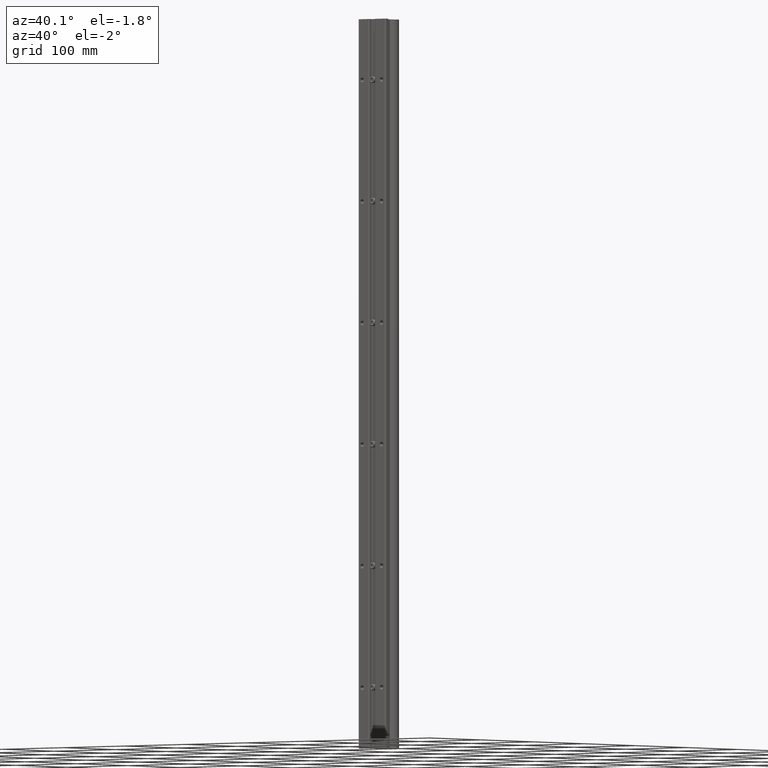
[diagram: clean part render]
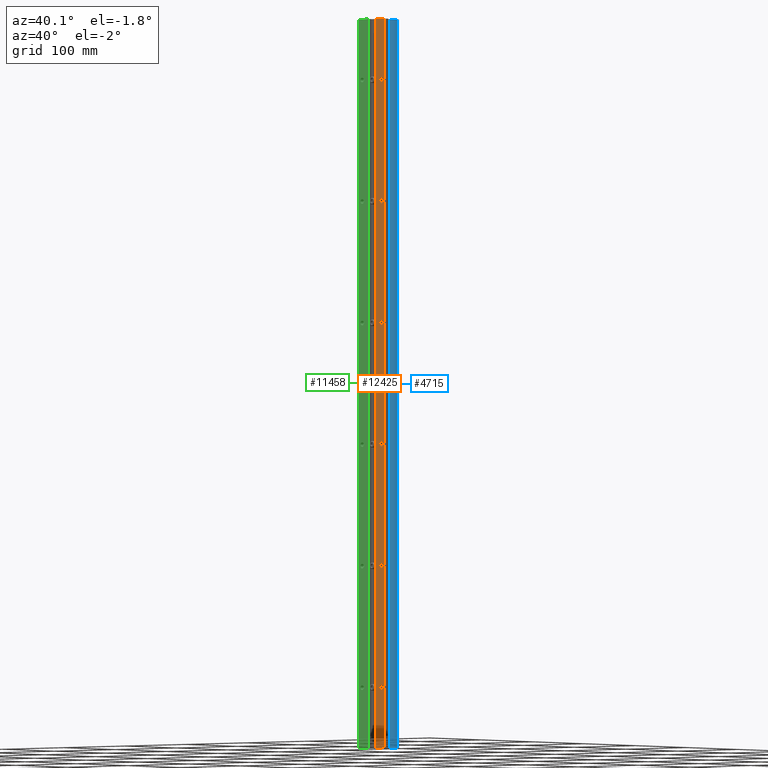
[diagram: same view with three faces highlighted in distinct colors, each labeled with its STEP entity id]
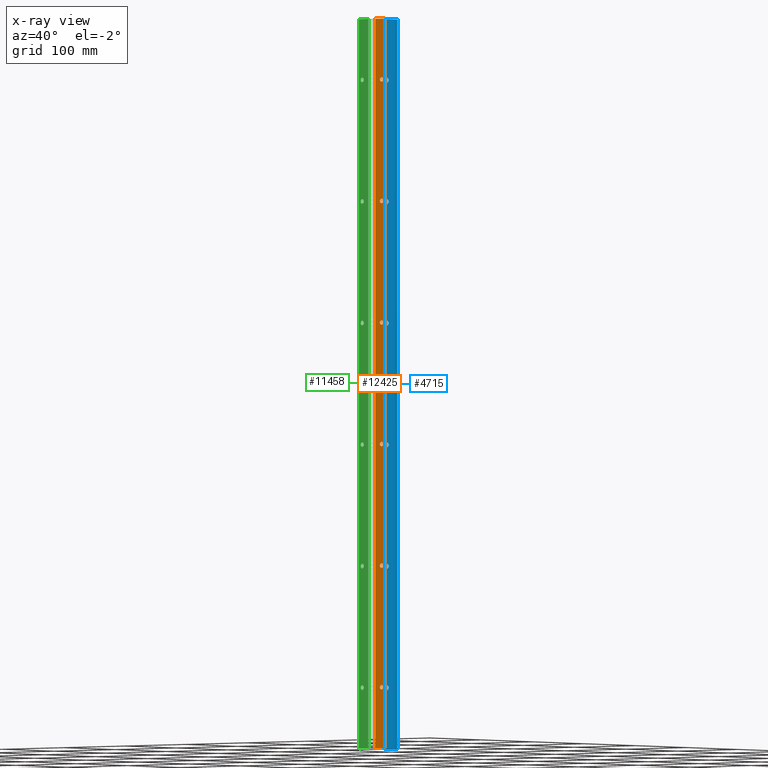
[diagram: x-ray of the same camera — body ghosted, the three highlighted faces saturated]
A machine part, auxiliary view with three faces highlighted in distinct colors.
The next image is the same camera in x-ray (body ghosted, the three faces saturated) — at least one of them is partly hidden behind the body in this view.
Their STEP definitions:

[orange] entity #12425 — the highlighted planar face has unit normal (0, 1, 0).
#90 = CIRCLE ( 'NONE', #8876, 0.1104999999999998206 ) ;
#111 = VERTEX_POINT ( 'NONE', #6776 ) ;
#161 = VERTEX_POINT ( 'NONE', #2583 ) ;
#166 = FACE_BOUND ( 'NONE', #6245, .T. ) ;
#298 = FACE_BOUND ( 'NONE', #3212, .T. ) ;
#366 = ORIENTED_EDGE ( 'NONE', *, *, #1584, .T. ) ;
#421 = CARTESIAN_POINT ( 'NONE',  ( 0.6250000000000000000, 0.000000000000000000, -33.11050000000000182 ) ) ;
#428 = CIRCLE ( 'NONE', #9423, 0.1105000000000019994 ) ;
#519 = EDGE_CURVE ( 'NONE', #13524, #5282, #12162, .T. ) ;
#670 = EDGE_CURVE ( 'NONE', #5282, #13524, #90, .T. ) ;
#694 = DIRECTION ( 'NONE',  ( 0.000000000000000000, 1.000000000000000000, 0.000000000000000000 ) ) ;
#1281 = CARTESIAN_POINT ( 'NONE',  ( 0.8255796188425064130, 0.000000000000000000, -38.10463218188032641 ) ) ;
#1293 = ORIENTED_EDGE ( 'NONE', *, *, #7701, .T. ) ;
#1315 = CARTESIAN_POINT ( 'NONE',  ( 0.6250000000000000000, 0.000000000000000000, -3.000000000000000444 ) ) ;
#1391 = AXIS2_PLACEMENT_3D ( 'NONE', #7946, #5986, #1640 ) ;
#1573 = CIRCLE ( 'NONE', #7280, 0.1105000000000019994 ) ;
#1584 = EDGE_CURVE ( 'NONE', #111, #3550, #10195, .T. ) ;
#1591 = ORIENTED_EDGE ( 'NONE', *, *, #3141, .T. ) ;
#1640 = DIRECTION ( 'NONE',  ( 0.000000000000000000, 0.000000000000000000, 1.000000000000000000 ) ) ;
#1730 = DIRECTION ( 'NONE',  ( 0.000000000000000000, 1.000000000000000000, 0.000000000000000000 ) ) ;
#1907 = ORIENTED_EDGE ( 'NONE', *, *, #2369, .T. ) ;
#2066 = AXIS2_PLACEMENT_3D ( 'NONE', #10832, #3435, #2406 ) ;
#2156 = EDGE_CURVE ( 'NONE', #5672, #2237, #1573, .T. ) ;
#2201 = DIRECTION ( 'NONE',  ( 0.000000000000000000, 1.000000000000000000, 0.000000000000000000 ) ) ;
#2237 = VERTEX_POINT ( 'NONE', #11886 ) ;
#2264 = EDGE_LOOP ( 'NONE', ( #13388, #1293 ) ) ;
#2369 = EDGE_CURVE ( 'NONE', #5466, #11293, #11871, .T. ) ;
#2389 = DIRECTION ( 'NONE',  ( 1.000000000000000000, 0.000000000000000000, 0.000000000000000000 ) ) ;
#2390 = CIRCLE ( 'NONE', #2607, 0.1104999999999998206 ) ;
#2403 = ORIENTED_EDGE ( 'NONE', *, *, #670, .T. ) ;
#2406 = DIRECTION ( 'NONE',  ( 0.000000000000000000, 0.000000000000000000, 1.000000000000000000 ) ) ;
#2583 = CARTESIAN_POINT ( 'NONE',  ( 0.6250000000000000000, 0.000000000000000000, -2.889500000000000401 ) ) ;
#2594 = AXIS2_PLACEMENT_3D ( 'NONE', #4445, #3487, #6193 ) ;
#2607 = AXIS2_PLACEMENT_3D ( 'NONE', #9415, #2201, #6394 ) ;
#2682 = CARTESIAN_POINT ( 'NONE',  ( 0.6250000000000000000, 0.000000000000000000, -15.00000000000000000 ) ) ;
#2888 = DIRECTION ( 'NONE',  ( -1.000000000000000000, 0.000000000000000000, 0.000000000000000000 ) ) ;
#3044 = EDGE_CURVE ( 'NONE', #11293, #5466, #428, .T. ) ;
#3141 = EDGE_CURVE ( 'NONE', #4711, #5639, #7513, .T. ) ;
#3191 = DIRECTION ( 'NONE',  ( 0.000000000000000000, 0.000000000000000000, 1.000000000000000000 ) ) ;
#3212 = EDGE_LOOP ( 'NONE', ( #2403, #6694 ) ) ;
#3265 = AXIS2_PLACEMENT_3D ( 'NONE', #7483, #8577, #11653 ) ;
#3418 = CARTESIAN_POINT ( 'NONE',  ( 0.2244203811574860263, 9.860263852131950147E-16, 0.000000000000000000 ) ) ;
#3435 = DIRECTION ( 'NONE',  ( 0.000000000000000000, 1.000000000000000000, 0.000000000000000000 ) ) ;
#3487 = DIRECTION ( 'NONE',  ( 0.000000000000000000, 1.000000000000000000, 0.000000000000000000 ) ) ;
#3528 = VECTOR ( 'NONE', #10261, 39.37007874015748143 ) ;
#3550 = VERTEX_POINT ( 'NONE', #5766 ) ;
#3750 = CARTESIAN_POINT ( 'NONE',  ( 0.6250000000000000000, 0.000000000000000000, -33.00000000000000000 ) ) ;
#3913 = ORIENTED_EDGE ( 'NONE', *, *, #7948, .T. ) ;
#3927 = LINE ( 'NONE', #8093, #8520 ) ;
#4041 = EDGE_LOOP ( 'NONE', ( #10673, #10177, #8785, #5513 ) ) ;
#4100 = CARTESIAN_POINT ( 'NONE',  ( 0.6250000000000000000, 0.000000000000000000, -27.00000000000000355 ) ) ;
#4273 = DIRECTION ( 'NONE',  ( 0.000000000000000000, 1.000000000000000000, 0.000000000000000000 ) ) ;
#4358 = DIRECTION ( 'NONE',  ( 0.000000000000000000, 1.000000000000000000, 0.000000000000000000 ) ) ;
#4445 = CARTESIAN_POINT ( 'NONE',  ( -2.500000000000000000, 0.000000000000000000, 0.1250000000000000000 ) ) ;
#4559 = VECTOR ( 'NONE', #7659, 39.37007874015748143 ) ;
#4656 = FACE_OUTER_BOUND ( 'NONE', #4041, .T. ) ;
#4681 = EDGE_LOOP ( 'NONE', ( #11806, #1907 ) ) ;
#4707 = CARTESIAN_POINT ( 'NONE',  ( 0.6250000000000000000, 0.000000000000000000, -33.00000000000000000 ) ) ;
#4711 = VERTEX_POINT ( 'NONE', #12396 ) ;
#5081 = ORIENTED_EDGE ( 'NONE', *, *, #12695, .T. ) ;
#5162 = CARTESIAN_POINT ( 'NONE',  ( 0.6250000000000000000, 0.000000000000000000, -9.110500000000001819 ) ) ;
#5282 = VERTEX_POINT ( 'NONE', #5162 ) ;
#5313 = DIRECTION ( 'NONE',  ( 0.000000000000000000, 0.000000000000000000, 1.000000000000000000 ) ) ;
#5424 = FACE_BOUND ( 'NONE', #2264, .T. ) ;
#5466 = VERTEX_POINT ( 'NONE', #10820 ) ;
#5513 = ORIENTED_EDGE ( 'NONE', *, *, #10837, .T. ) ;
#5639 = VERTEX_POINT ( 'NONE', #11612 ) ;
#5672 = VERTEX_POINT ( 'NONE', #9711 ) ;
#5766 = CARTESIAN_POINT ( 'NONE',  ( 0.6250000000000000000, 0.000000000000000000, -14.88949999999999996 ) ) ;
#5846 = VERTEX_POINT ( 'NONE', #7556 ) ;
#5910 = EDGE_CURVE ( 'NONE', #5846, #161, #8721, .T. ) ;
#5971 = ORIENTED_EDGE ( 'NONE', *, *, #5910, .T. ) ;
#5986 = DIRECTION ( 'NONE',  ( 0.000000000000000000, 1.000000000000000000, 0.000000000000000000 ) ) ;
#6014 = LINE ( 'NONE', #6137, #3528 ) ;
#6129 = CIRCLE ( 'NONE', #6796, 0.1105000000000019994 ) ;
#6137 = CARTESIAN_POINT ( 'NONE',  ( 0.2244203811574917440, 0.000000000000000000, -38.10463218188032641 ) ) ;
#6193 = DIRECTION ( 'NONE',  ( 0.000000000000000000, -0.000000000000000000, 1.000000000000000000 ) ) ;
#6245 = EDGE_LOOP ( 'NONE', ( #3913, #1591 ) ) ;
#6275 = DIRECTION ( 'NONE',  ( 0.000000000000000000, 1.000000000000000000, 0.000000000000000000 ) ) ;
#6367 = CIRCLE ( 'NONE', #13605, 0.1105000000000019994 ) ;
#6394 = DIRECTION ( 'NONE',  ( 0.000000000000000000, 0.000000000000000000, 1.000000000000000000 ) ) ;
#6431 = EDGE_CURVE ( 'NONE', #10704, #8534, #3927, .T. ) ;
#6481 = VECTOR ( 'NONE', #2389, 39.37007874015748143 ) ;
#6694 = ORIENTED_EDGE ( 'NONE', *, *, #519, .T. ) ;
#6776 = CARTESIAN_POINT ( 'NONE',  ( 0.6250000000000000000, 0.000000000000000000, -15.11050000000000004 ) ) ;
#6796 = AXIS2_PLACEMENT_3D ( 'NONE', #12304, #10311, #10238 ) ;
#6971 = AXIS2_PLACEMENT_3D ( 'NONE', #1315, #4358, #3191 ) ;
#7167 = CARTESIAN_POINT ( 'NONE',  ( 0.6250000000000000000, 0.000000000000000000, -21.00000000000000355 ) ) ;
#7280 = AXIS2_PLACEMENT_3D ( 'NONE', #7167, #6275, #9226 ) ;
#7483 = CARTESIAN_POINT ( 'NONE',  ( 0.6250000000000000000, 0.000000000000000000, -3.000000000000000444 ) ) ;
#7513 = CIRCLE ( 'NONE', #1391, 0.1105000000000019994 ) ;
#7556 = CARTESIAN_POINT ( 'NONE',  ( 0.6250000000000000000, 0.000000000000000000, -3.110500000000000043 ) ) ;
#7559 = VERTEX_POINT ( 'NONE', #3418 ) ;
#7659 = DIRECTION ( 'NONE',  ( 0.000000000000000000, 0.000000000000000000, 1.000000000000000000 ) ) ;
#7701 = EDGE_CURVE ( 'NONE', #2237, #5672, #6129, .T. ) ;
#7874 = EDGE_CURVE ( 'NONE', #8534, #7559, #6014, .T. ) ;
#7946 = CARTESIAN_POINT ( 'NONE',  ( 0.6250000000000000000, 0.000000000000000000, -27.00000000000000355 ) ) ;
#7948 = EDGE_CURVE ( 'NONE', #5639, #4711, #6367, .T. ) ;
#8052 = DIRECTION ( 'NONE',  ( 0.000000000000000000, 1.000000000000000000, 0.000000000000000000 ) ) ;
#8093 = CARTESIAN_POINT ( 'NONE',  ( 0.2244203811574917440, 0.000000000000000000, -36.00000000000000000 ) ) ;
#8306 = CIRCLE ( 'NONE', #3265, 0.1104999999999998206 ) ;
#8520 = VECTOR ( 'NONE', #2888, 39.37007874015748143 ) ;
#8534 = VERTEX_POINT ( 'NONE', #9178 ) ;
#8577 = DIRECTION ( 'NONE',  ( 0.000000000000000000, 1.000000000000000000, 0.000000000000000000 ) ) ;
#8678 = FACE_BOUND ( 'NONE', #9661, .T. ) ;
#8685 = CARTESIAN_POINT ( 'NONE',  ( -2.500000000000000000, 0.000000000000000000, 0.000000000000000000 ) ) ;
#8721 = CIRCLE ( 'NONE', #6971, 0.1104999999999998206 ) ;
#8785 = ORIENTED_EDGE ( 'NONE', *, *, #6431, .F. ) ;
#8876 = AXIS2_PLACEMENT_3D ( 'NONE', #11449, #4273, #5313 ) ;
#8894 = LINE ( 'NONE', #1281, #4559 ) ;
#9178 = CARTESIAN_POINT ( 'NONE',  ( 0.2244203811574917440, 4.268512490100411279E-18, -36.00000000000000000 ) ) ;
#9226 = DIRECTION ( 'NONE',  ( 0.000000000000000000, 0.000000000000000000, 1.000000000000000000 ) ) ;
#9251 = AXIS2_PLACEMENT_3D ( 'NONE', #3750, #1730, #12244 ) ;
#9415 = CARTESIAN_POINT ( 'NONE',  ( 0.6250000000000000000, 0.000000000000000000, -15.00000000000000000 ) ) ;
#9423 = AXIS2_PLACEMENT_3D ( 'NONE', #4707, #13082, #13353 ) ;
#9661 = EDGE_LOOP ( 'NONE', ( #366, #5081 ) ) ;
#9711 = CARTESIAN_POINT ( 'NONE',  ( 0.6250000000000000000, 0.000000000000000000, -21.11050000000000537 ) ) ;
#9795 = FACE_BOUND ( 'NONE', #13583, .T. ) ;
#9808 = ORIENTED_EDGE ( 'NONE', *, *, #12605, .T. ) ;
#10136 = EDGE_CURVE ( 'NONE', #7559, #13454, #12893, .T. ) ;
#10177 = ORIENTED_EDGE ( 'NONE', *, *, #7874, .F. ) ;
#10195 = CIRCLE ( 'NONE', #12398, 0.1104999999999998206 ) ;
#10238 = DIRECTION ( 'NONE',  ( 0.000000000000000000, 0.000000000000000000, 1.000000000000000000 ) ) ;
#10261 = DIRECTION ( 'NONE',  ( 0.000000000000000000, 0.000000000000000000, 1.000000000000000000 ) ) ;
#10311 = DIRECTION ( 'NONE',  ( 0.000000000000000000, 1.000000000000000000, 0.000000000000000000 ) ) ;
#10326 = DIRECTION ( 'NONE',  ( 0.000000000000000000, 0.000000000000000000, 1.000000000000000000 ) ) ;
#10673 = ORIENTED_EDGE ( 'NONE', *, *, #10136, .F. ) ;
#10676 = PLANE ( 'NONE',  #2594 ) ;
#10704 = VERTEX_POINT ( 'NONE', #12215 ) ;
#10820 = CARTESIAN_POINT ( 'NONE',  ( 0.6250000000000000000, 0.000000000000000000, -32.88949999999999818 ) ) ;
#10832 = CARTESIAN_POINT ( 'NONE',  ( 0.6250000000000000000, 0.000000000000000000, -9.000000000000001776 ) ) ;
#10837 = EDGE_CURVE ( 'NONE', #10704, #13454, #8894, .T. ) ;
#11293 = VERTEX_POINT ( 'NONE', #421 ) ;
#11304 = DIRECTION ( 'NONE',  ( 0.000000000000000000, 0.000000000000000000, 1.000000000000000000 ) ) ;
#11449 = CARTESIAN_POINT ( 'NONE',  ( 0.6250000000000000000, 0.000000000000000000, -9.000000000000001776 ) ) ;
#11612 = CARTESIAN_POINT ( 'NONE',  ( 0.6250000000000000000, 0.000000000000000000, -27.11050000000000537 ) ) ;
#11653 = DIRECTION ( 'NONE',  ( 0.000000000000000000, 0.000000000000000000, 1.000000000000000000 ) ) ;
#11752 = CARTESIAN_POINT ( 'NONE',  ( 0.8255796188425067461, 0.000000000000000000, 0.000000000000000000 ) ) ;
#11806 = ORIENTED_EDGE ( 'NONE', *, *, #3044, .T. ) ;
#11871 = CIRCLE ( 'NONE', #9251, 0.1105000000000019994 ) ;
#11886 = CARTESIAN_POINT ( 'NONE',  ( 0.6250000000000000000, 0.000000000000000000, -20.88950000000000173 ) ) ;
#12162 = CIRCLE ( 'NONE', #2066, 0.1104999999999998206 ) ;
#12215 = CARTESIAN_POINT ( 'NONE',  ( 0.8255796188425064130, 0.000000000000000000, -36.00000000000000000 ) ) ;
#12244 = DIRECTION ( 'NONE',  ( 0.000000000000000000, 0.000000000000000000, 1.000000000000000000 ) ) ;
#12304 = CARTESIAN_POINT ( 'NONE',  ( 0.6250000000000000000, 0.000000000000000000, -21.00000000000000355 ) ) ;
#12315 = CARTESIAN_POINT ( 'NONE',  ( 0.6250000000000000000, 0.000000000000000000, -8.889500000000001734 ) ) ;
#12396 = CARTESIAN_POINT ( 'NONE',  ( 0.6250000000000000000, 0.000000000000000000, -26.88950000000000173 ) ) ;
#12398 = AXIS2_PLACEMENT_3D ( 'NONE', #2682, #694, #11304 ) ;
#12425 = ADVANCED_FACE ( 'NONE', ( #5424, #166, #298, #8678, #12885, #9795, #4656 ), #10676, .F. ) ;
#12605 = EDGE_CURVE ( 'NONE', #161, #5846, #8306, .T. ) ;
#12695 = EDGE_CURVE ( 'NONE', #3550, #111, #2390, .T. ) ;
#12885 = FACE_BOUND ( 'NONE', #4681, .T. ) ;
#12893 = LINE ( 'NONE', #8685, #6481 ) ;
#13082 = DIRECTION ( 'NONE',  ( 0.000000000000000000, 1.000000000000000000, 0.000000000000000000 ) ) ;
#13353 = DIRECTION ( 'NONE',  ( 0.000000000000000000, 0.000000000000000000, 1.000000000000000000 ) ) ;
#13388 = ORIENTED_EDGE ( 'NONE', *, *, #2156, .T. ) ;
#13454 = VERTEX_POINT ( 'NONE', #11752 ) ;
#13524 = VERTEX_POINT ( 'NONE', #12315 ) ;
#13583 = EDGE_LOOP ( 'NONE', ( #5971, #9808 ) ) ;
#13605 = AXIS2_PLACEMENT_3D ( 'NONE', #4100, #8052, #10326 ) ;

[blue] entity #4715 — the highlighted cylindrical surface (edge-blend (fillet) strip) has radius 9.525 mm, axis along (0, 0, 1).
#9 = CARTESIAN_POINT ( 'NONE',  ( 0.1209500571403311353, 1.145036647307088984, -20.96739612107969108 ) ) ;
#26 = B_SPLINE_CURVE_WITH_KNOTS ( 'NONE', 3,
 ( #13492, #11339, #5184, #8328, #6267, #3061, #1120, #4095, #3125, #2207, #9484, #10580, #7232, #2075, #4357, #1181, #9424, #1937, #66, #5395, #1057, #4292, #12660, #6200, #12597, #3190, #6131, #9553, #12537, #5261, #12721, #7295 ),
 .UNSPECIFIED., .F., .F.,
 ( 4, 2, 2, 2, 2, 2, 2, 2, 2, 2, 2, 2, 2, 2, 2, 4 ),
 ( 0.009998574125601069132, 0.01062332590191391798, 0.01124807767822676857, 0.01187282945453961742, 0.01249758123085246628, 0.01374708478347816398, 0.01437183655979101457, 0.01499658833610386516, 0.01562134011241671575, 0.01624609188872956633, 0.01687084366504241692, 0.01749559544135526751, 0.01812034721766811809, 0.01874509899398096868, 0.01936985077029381927, 0.01999460254660666986 ),
 .UNSPECIFIED. ) ;
#66 = CARTESIAN_POINT ( 'NONE',  ( 0.1185326186922871505, 1.144210938468774863, -9.040514797093033295 ) ) ;
#72 = CARTESIAN_POINT ( 'NONE',  ( 0.06278460617192903326, 1.130229337425312286, -15.10839357426871921 ) ) ;
#74 = CARTESIAN_POINT ( 'NONE',  ( 0.07637577337513082321, 1.132795830430083361, -2.900713745801356769 ) ) ;
#120 = CARTESIAN_POINT ( 'NONE',  ( -0.01648624209988779413, 1.125274797949223471, -14.87581735851973086 ) ) ;
#162 = CARTESIAN_POINT ( 'NONE',  ( 0.09994538311842438016, 1.138369034816674619, -26.92317285880787381 ) ) ;
#195 = CARTESIAN_POINT ( 'NONE',  ( -0.1091466335872150195, 1.141175278546628702, -15.06305990485126145 ) ) ;
#208 = EDGE_CURVE ( 'NONE', #2532, #3032, #12925, .T. ) ;
#299 = CARTESIAN_POINT ( 'NONE',  ( -0.07634699348806622821, 1.132789384939130617, -3.099310559574415702 ) ) ;
#372 = CARTESIAN_POINT ( 'NONE',  ( -0.1122437319770860781, 1.142176852049964886, -2.944374544159568341 ) ) ;
#395 = CARTESIAN_POINT ( 'NONE',  ( -0.09986561048412712083, 1.138350464728789424, -27.07690085228848176 ) ) ;
#451 = CARTESIAN_POINT ( 'NONE',  ( -0.07635022463610419141, 1.132790423690561488, -2.900693733610288483 ) ) ;
#492 = CARTESIAN_POINT ( 'NONE',  ( -0.1091466335872150334, 1.141175278546628924, -21.06305990485126145 ) ) ;
#501 = CARTESIAN_POINT ( 'NONE',  ( -0.1241888673462582665, 1.146156742583905874, -9.016433451939814603 ) ) ;
#521 = CARTESIAN_POINT ( 'NONE',  ( 0.04052490638182691673, 1.127118274301450507, -33.11853160506549187 ) ) ;
#528 = CARTESIAN_POINT ( 'NONE',  ( 0.000000000000000000, 1.500000000000000222, -36.00000000000000000 ) ) ;
#538 = CARTESIAN_POINT ( 'NONE',  ( -0.09411010042740698689, 1.136952681569074031, -26.91732909367861382 ) ) ;
#551 = ORIENTED_EDGE ( 'NONE', *, *, #10084, .F. ) ;
#569 = DIRECTION ( 'NONE',  ( 0.000000000000000000, 0.000000000000000000, 1.000000000000000000 ) ) ;
#585 = CARTESIAN_POINT ( 'NONE',  ( -0.1209544131638255610, 1.145038121379763130, -32.96740706274433563 ) ) ;
#646 = CARTESIAN_POINT ( 'NONE',  ( -0.1083646537625427148, 1.140967728712819707, -8.937167800081306623 ) ) ;
#675 = VERTEX_POINT ( 'NONE', #5243 ) ;
#740 = CARTESIAN_POINT ( 'NONE',  ( 2.097213048189285219E-15, 1.125000000000000222, -8.874999999999998224 ) ) ;
#790 = CARTESIAN_POINT ( 'NONE',  ( -0.1249959074323481328, 1.146445162465756562, -33.00828225200010024 ) ) ;
#826 = VERTEX_POINT ( 'NONE', #4951 ) ;
#858 = CARTESIAN_POINT ( 'NONE',  ( -0.1083646537625423956, 1.140967728712819707, -32.93716780008130485 ) ) ;
#932 = CARTESIAN_POINT ( 'NONE',  ( 0.1185326186922871922, 1.144210938468774863, -3.040514797093034627 ) ) ;
#933 = CARTESIAN_POINT ( 'NONE',  ( 0.08267656770183443027, 1.134179936560776314, -21.09410215216271212 ) ) ;
#953 = EDGE_CURVE ( 'NONE', #9383, #7477, #4957, .T. ) ;
#994 = CARTESIAN_POINT ( 'NONE',  ( 0.1122679117759138590, 1.142184748809114136, -15.05556389531895611 ) ) ;
#1057 = CARTESIAN_POINT ( 'NONE',  ( 0.1083932797338995196, 1.140975780241187065, -9.062792534659058319 ) ) ;
#1065 = CARTESIAN_POINT ( 'NONE',  ( 0.008197098410217954975, 1.125000000000000666, -2.874999999999999112 ) ) ;
#1066 = CARTESIAN_POINT ( 'NONE',  ( 0.05563716654445881316, 1.129072035165736620, -21.11223419770978893 ) ) ;
#1107 = CARTESIAN_POINT ( 'NONE',  ( -0.04047420807541153576, 1.127113368225226564, -14.88145339924749067 ) ) ;
#1120 = CARTESIAN_POINT ( 'NONE',  ( 0.06287984198914953193, 1.130245640486009728, -8.891661897271243120 ) ) ;
#1129 = CARTESIAN_POINT ( 'NONE',  ( 0.04048540440161958048, 1.127114285105013103, -2.881456091856274604 ) ) ;
#1147 = CARTESIAN_POINT ( 'NONE',  ( -0.3749999999999999445, 1.500000000000000222, -36.00000000000000000 ) ) ;
#1163 = CARTESIAN_POINT ( 'NONE',  ( -0.05552849340515821769, 1.129056354555277197, -14.88771445111031433 ) ) ;
#1181 = CARTESIAN_POINT ( 'NONE',  ( 0.1249990179307815252, 1.146446262192827081, -9.008251769670570397 ) ) ;
#1203 = CARTESIAN_POINT ( 'NONE',  ( 0.08267656770183443027, 1.134179936560776314, -27.09410215216271567 ) ) ;
#1231 = CARTESIAN_POINT ( 'NONE',  ( -0.1249959074323481467, 1.146445162465756562, -15.00828225200010202 ) ) ;
#1248 = CARTESIAN_POINT ( 'NONE',  ( -0.008199185978417126291, 1.125000000000000000, -20.87500000000000000 ) ) ;
#1312 = CARTESIAN_POINT ( 'NONE',  ( -0.1122437319770848707, 1.142176852049964664, -20.94437454415956523 ) ) ;
#1339 = CARTESIAN_POINT ( 'NONE',  ( 0.1249990179307813587, 1.146446262192827303, -27.00825176967057928 ) ) ;
#1358 = CARTESIAN_POINT ( 'NONE',  ( -0.08270888014692441559, 1.134187380241394427, -27.09407290499849452 ) ) ;
#1426 = CARTESIAN_POINT ( 'NONE',  ( -0.008199185978417126291, 1.125000000000000000, -26.87500000000000355 ) ) ;
#1451 = CARTESIAN_POINT ( 'NONE',  ( -0.05552849340515757237, 1.129056354555277197, -20.88771445111031255 ) ) ;
#1459 = CARTESIAN_POINT ( 'NONE',  ( -0.06280237164814420070, 1.130232016876234979, -9.108385020980847457 ) ) ;
#1481 = CARTESIAN_POINT ( 'NONE',  ( -0.09933638728234459037, 1.138365720413012649, -2.923690985503739181 ) ) ;
#1524 = CARTESIAN_POINT ( 'NONE',  ( -0.06284423705968371354, 1.130239494261856770, -20.89164090617472169 ) ) ;
#1564 = EDGE_LOOP ( 'NONE', ( #8411, #2324 ) ) ;
#1571 = CARTESIAN_POINT ( 'NONE',  ( -0.1122437319770848707, 1.142176852049964664, -26.94437454415957234 ) ) ;
#1576 = VERTEX_POINT ( 'NONE', #8226 ) ;
#1618 = CARTESIAN_POINT ( 'NONE',  ( 2.097213048189285219E-15, 1.125000000000000222, -32.87499999999999289 ) ) ;
#1733 = CARTESIAN_POINT ( 'NONE',  ( -0.1091466335872150334, 1.141175278546629146, -9.063059904851265003 ) ) ;
#1740 = CARTESIAN_POINT ( 'NONE',  ( 2.097213048189285219E-15, 1.125000000000000222, -32.87499999999999289 ) ) ;
#1755 = CARTESIAN_POINT ( 'NONE',  ( 0.08263376477293436773, 1.134169548060882216, -32.90585498830494515 ) ) ;
#1802 = CARTESIAN_POINT ( 'NONE',  ( -0.008323276755297677812, 1.125000000000000222, -15.12500000000000000 ) ) ;
#1803 = CARTESIAN_POINT ( 'NONE',  ( -0.09986561048412712083, 1.138350464728789424, -33.07690085228847465 ) ) ;
#1811 = CARTESIAN_POINT ( 'NONE',  ( 0.03266774632321094857, 1.126337263159386426, -32.87906118326279170 ) ) ;
#1867 = CARTESIAN_POINT ( 'NONE',  ( -0.1209558938445397802, 1.145038597399876235, -15.03259762046029202 ) ) ;
#1868 = CARTESIAN_POINT ( 'NONE',  ( -0.04052925131259926816, 1.127118722568794862, -33.11853021665825025 ) ) ;
#1873 = CARTESIAN_POINT ( 'NONE',  ( 2.097213048187297684E-15, 1.125000000000000222, -14.87499999999999822 ) ) ;
#1881 = CARTESIAN_POINT ( 'NONE',  ( 0.08267656770183443027, 1.134179936560776314, -33.09410215216270501 ) ) ;
#1937 = CARTESIAN_POINT ( 'NONE',  ( 0.1209654137732475571, 1.145041858245552380, -9.032560678855006131 ) ) ;
#1948 = CARTESIAN_POINT ( 'NONE',  ( 0.1185326186922871922, 1.144210938468774863, -15.04051479709303329 ) ) ;
#1950 = CARTESIAN_POINT ( 'NONE',  ( 0.1185730390998943201, 1.144224147783138967, -2.959588506444464251 ) ) ;
#1951 = CARTESIAN_POINT ( 'NONE',  ( 0.008197098410217882117, 1.125000000000000666, -20.87500000000000355 ) ) ;
#2014 = CARTESIAN_POINT ( 'NONE',  ( 0.1250009802955067140, 1.146446955993523975, -2.991778010489037243 ) ) ;
#2075 = CARTESIAN_POINT ( 'NONE',  ( 0.1241678343262125617, 1.146149400175753064, -8.983438654594586126 ) ) ;
#2089 = CARTESIAN_POINT ( 'NONE',  ( 0.09927870683307976618, 1.138349295819228946, -21.07639204061896976 ) ) ;
#2180 = B_SPLINE_CURVE_WITH_KNOTS ( 'NONE', 3,
 ( #12471, #7363, #10384, #8860, #7758, #2355, #11956, #11661, #2556, #7691, #492, #13000, #2494, #3598, #6670, #13071, #8582, #6468, #4694, #1312, #6745, #10915, #11880, #10854, #10644, #1524, #1451, #5733, #5663, #9839, #1248, #9908 ),
 .UNSPECIFIED., .F., .F.,
 ( 4, 2, 2, 2, 2, 2, 2, 2, 2, 2, 2, 2, 2, 2, 2, 4 ),
 ( 2.166493291249464291E-17, 0.0006249108828499984076, 0.001249821765699975131, 0.001874732648549952072, 0.002499643531399928578, 0.003749465297100115779, 0.004374376179950210247, 0.004999287062800303848, 0.005624197945650399183, 0.006249108828500492784, 0.006874019711350587251, 0.007498930594200681719, 0.008123841477050775320, 0.008748752359900869788, 0.009373663242750964256, 0.009998574125601058724 ),
 .UNSPECIFIED. ) ;
#2194 = CARTESIAN_POINT ( 'NONE',  ( -0.008199185978417187007, 1.125000000000000222, -14.87500000000000178 ) ) ;
#2198 = ORIENTED_EDGE ( 'NONE', *, *, #10254, .T. ) ;
#2207 = CARTESIAN_POINT ( 'NONE',  ( 0.09994538311842349199, 1.138369034816674841, -8.923172858807872032 ) ) ;
#2216 = CARTESIAN_POINT ( 'NONE',  ( 0.01649640680358269509, 1.125276643179092595, -3.124176879621411551 ) ) ;
#2261 = CARTESIAN_POINT ( 'NONE',  ( -0.1185723957054425626, 1.144223880012038341, -14.95958423967965167 ) ) ;
#2269 = CARTESIAN_POINT ( 'NONE',  ( 2.097213048189285219E-15, 1.125000000000000222, -20.87499999999999289 ) ) ;
#2309 = CARTESIAN_POINT ( 'NONE',  ( -0.1241888673462583081, 1.146156742583905874, -3.016433451939814603 ) ) ;
#2324 = ORIENTED_EDGE ( 'NONE', *, *, #6741, .T. ) ;
#2355 = CARTESIAN_POINT ( 'NONE',  ( -0.05564380897423196193, 1.129073007461675271, -21.11223100728342317 ) ) ;
#2362 = ORIENTED_EDGE ( 'NONE', *, *, #208, .T. ) ;
#2371 = CARTESIAN_POINT ( 'NONE',  ( 8.785896231821153172E-16, 1.125000000000000222, -33.12499999999999289 ) ) ;
#2378 = CARTESIAN_POINT ( 'NONE',  ( 0.05563716654445881316, 1.129072035165736620, -27.11223419770979959 ) ) ;
#2384 = CARTESIAN_POINT ( 'NONE',  ( -0.008199185978417157517, 1.125000000000000222, -2.875000000000000000 ) ) ;
#2405 = CARTESIAN_POINT ( 'NONE',  ( -0.04052925131259926816, 1.127118722568794862, -27.11853021665825736 ) ) ;
#2434 = CARTESIAN_POINT ( 'NONE',  ( 0.08267656770183405557, 1.134179936560776092, -15.09410215216271034 ) ) ;
#2450 = CARTESIAN_POINT ( 'NONE',  ( 8.785896231821153172E-16, 1.125000000000000222, -27.12500000000000000 ) ) ;
#2494 = CARTESIAN_POINT ( 'NONE',  ( -0.1209558938445396414, 1.145038597399876235, -21.03259762046028669 ) ) ;
#2503 = CARTESIAN_POINT ( 'NONE',  ( -0.03255629333503181483, 1.126329225507830323, -9.120963434814337134 ) ) ;
#2519 = CARTESIAN_POINT ( 'NONE',  ( -0.1250040618164579842, 1.146448045475507937, -2.991841746362331467 ) ) ;
#2532 = VERTEX_POINT ( 'NONE', #2269 ) ;
#2538 = CARTESIAN_POINT ( 'NONE',  ( -0.06280237164814474193, 1.130232016876234979, -27.10838502098085101 ) ) ;
#2556 = CARTESIAN_POINT ( 'NONE',  ( -0.08270888014692441559, 1.134187380241394427, -21.09407290499849097 ) ) ;
#2581 = CIRCLE ( 'NONE', #3459, 0.3749999999999999445 ) ;
#2582 = CARTESIAN_POINT ( 'NONE',  ( -0.1091466335872149501, 1.141175278546628924, -3.063059904851265447 ) ) ;
#2605 = CARTESIAN_POINT ( 'NONE',  ( -0.1241888673462583775, 1.146156742583905874, -27.01643345193981460 ) ) ;
#2639 = CARTESIAN_POINT ( 'NONE',  ( -0.1209544131638265879, 1.145038121379763796, -8.967407062744349844 ) ) ;
#2672 = CARTESIAN_POINT ( 'NONE',  ( -0.05552849340515757237, 1.129056354555277197, -26.88771445111031611 ) ) ;
#2710 = CARTESIAN_POINT ( 'NONE',  ( -0.1241761983711991701, 1.146152325010478812, -32.98349117263906294 ) ) ;
#2723 = CARTESIAN_POINT ( 'NONE',  ( 8.785896231821153172E-16, 1.125000000000000222, -33.12499999999999289 ) ) ;
#2732 = CARTESIAN_POINT ( 'NONE',  ( 0.03266774632321109428, 1.126337263159386870, -14.87906118326279525 ) ) ;
#2795 = DIRECTION ( 'NONE',  ( 0.000000000000000000, 0.000000000000000000, 1.000000000000000000 ) ) ;
#2849 = CARTESIAN_POINT ( 'NONE',  ( -0.008199185978417126291, 1.125000000000000000, -32.87499999999999289 ) ) ;
#2913 = CARTESIAN_POINT ( 'NONE',  ( -0.1122437319770857589, 1.142176852049964664, -14.94437454415956523 ) ) ;
#2925 = CARTESIAN_POINT ( 'NONE',  ( 0.01645178346242872139, 1.125272950837599151, -20.87581176438753161 ) ) ;
#2928 = CARTESIAN_POINT ( 'NONE',  ( 0.06287984198914750578, 1.130245640486009506, -32.89166189727122713 ) ) ;
#2991 = CARTESIAN_POINT ( 'NONE',  ( -0.03255629333503196055, 1.126329225507830101, -33.12096343481432825 ) ) ;
#2998 = CARTESIAN_POINT ( 'NONE',  ( 0.1250009802955067140, 1.146446955993523753, -14.99177801048903547 ) ) ;
#2999 = FACE_BOUND ( 'NONE', #8983, .T. ) ;
#3003 = CARTESIAN_POINT ( 'NONE',  ( 0.04052490638182691673, 1.127118274301450507, -21.11853160506548832 ) ) ;
#3011 = VERTEX_POINT ( 'NONE', #3818 ) ;
#3032 = VERTEX_POINT ( 'NONE', #4778 ) ;
#3053 = EDGE_CURVE ( 'NONE', #9885, #12418, #4216, .T. ) ;
#3056 = ORIENTED_EDGE ( 'NONE', *, *, #8792, .T. ) ;
#3061 = CARTESIAN_POINT ( 'NONE',  ( 0.05556862442868313462, 1.129062064057325454, -8.887733112153872739 ) ) ;
#3069 = CARTESIAN_POINT ( 'NONE',  ( 0.04048540440161966375, 1.127114285105013325, -14.88145609185627194 ) ) ;
#3073 = CARTESIAN_POINT ( 'NONE',  ( 0.1241678343262123674, 1.146149400175753064, -2.983438654594587014 ) ) ;
#3074 = CARTESIAN_POINT ( 'NONE',  ( 8.785896231821153172E-16, 1.125000000000000222, -21.12499999999999645 ) ) ;
#3125 = CARTESIAN_POINT ( 'NONE',  ( 0.08263376477293328526, 1.134169548060882216, -8.905854988304941600 ) ) ;
#3136 = CARTESIAN_POINT ( 'NONE',  ( 0.04052490638182626448, 1.127118274301450285, -3.118531605065489209 ) ) ;
#3137 = CARTESIAN_POINT ( 'NONE',  ( 0.1185730390998939593, 1.144224147783138967, -20.95958850644445448 ) ) ;
#3190 = CARTESIAN_POINT ( 'NONE',  ( 0.06278460617192910265, 1.130229337425312286, -9.108393574268717430 ) ) ;
#3196 = FACE_OUTER_BOUND ( 'NONE', #4952, .T. ) ;
#3213 = CARTESIAN_POINT ( 'NONE',  ( 0.04052490638182691673, 1.127118274301450507, -27.11853160506548477 ) ) ;
#3239 = CARTESIAN_POINT ( 'NONE',  ( -0.1185237875825028847, 1.144208060990027809, -15.04053697796968514 ) ) ;
#3240 = B_SPLINE_CURVE_WITH_KNOTS ( 'NONE', 3,
 ( #10862, #3752, #5740, #2503, #3680, #13006, #1459, #11124, #4849, #10056, #1733, #13211, #6950, #501, #5947, #6677, #7834, #2639, #3814, #12040, #646, #5673, #8735, #6756, #9013, #12108, #12942, #7978, #4773, #3606, #5806, #12174 ),
 .UNSPECIFIED., .F., .F.,
 ( 4, 2, 2, 2, 2, 2, 2, 2, 2, 2, 2, 2, 2, 2, 2, 4 ),
 ( 2.065158389285055442E-18, 0.0006249108828500682302, 0.001249821765700134509, 0.001874732648550200571, 0.002499643531400266849, 0.003749465297100398973, 0.004374376179950465252, 0.004999287062800531964, 0.005624197945650598676, 0.006249108828500666256, 0.006874019711350732968, 0.007498930594200801415, 0.008123841477050867260, 0.008748752359900935707, 0.009373663242751002420, 0.009998574125601069132 ),
 .UNSPECIFIED. ) ;
#3347 = CARTESIAN_POINT ( 'NONE',  ( -0.01648624209988772474, 1.125274797949223693, -2.875817358519734857 ) ) ;
#3412 = CARTESIAN_POINT ( 'NONE',  ( 0.07637577337512875542, 1.132795830430082917, -26.90071374580135455 ) ) ;
#3434 = CARTESIAN_POINT ( 'NONE',  ( -0.01648624209988901190, 1.125274797949223693, -26.87581735851973974 ) ) ;
#3459 = AXIS2_PLACEMENT_3D ( 'NONE', #9975, #569, #13135 ) ;
#3598 = CARTESIAN_POINT ( 'NONE',  ( -0.1241888673462583775, 1.146156742583905874, -21.01643345193981460 ) ) ;
#3606 = CARTESIAN_POINT ( 'NONE',  ( -0.01648624209988766923, 1.125274797949223693, -8.875817358519734412 ) ) ;
#3626 = CARTESIAN_POINT ( 'NONE',  ( -0.1249959074323481467, 1.146445162465756562, -3.008282252000103796 ) ) ;
#3648 = CARTESIAN_POINT ( 'NONE',  ( -0.1091466335872150334, 1.141175278546628924, -27.06305990485126500 ) ) ;
#3675 = VERTEX_POINT ( 'NONE', #9440 ) ;
#3680 = CARTESIAN_POINT ( 'NONE',  ( -0.04052925131259992736, 1.127118722568794862, -9.118530216658257359 ) ) ;
#3703 = CARTESIAN_POINT ( 'NONE',  ( 0.1185326186922886771, 1.144210938468775529, -33.04051479709303862 ) ) ;
#3720 = CARTESIAN_POINT ( 'NONE',  ( -0.04047420807541100146, 1.127113368225226786, -26.88145339924749422 ) ) ;
#3752 = CARTESIAN_POINT ( 'NONE',  ( -0.008323276755297761079, 1.125000000000000666, -9.125000000000000000 ) ) ;
#3766 = CARTESIAN_POINT ( 'NONE',  ( 0.07637577337512875542, 1.132795830430082917, -32.90071374580136165 ) ) ;
#3814 = CARTESIAN_POINT ( 'NONE',  ( -0.1185723957054424654, 1.144223880012038563, -8.959584239679655226 ) ) ;
#3818 = CARTESIAN_POINT ( 'NONE',  ( 6.354236240045021498E-17, 1.125000000000000222, -3.124999999999999556 ) ) ;
#3833 = CARTESIAN_POINT ( 'NONE',  ( 0.1083932797339005188, 1.140975780241187509, -33.06279253465904588 ) ) ;
#3859 = ORIENTED_EDGE ( 'NONE', *, *, #9130, .T. ) ;
#3870 = ORIENTED_EDGE ( 'NONE', *, *, #12198, .F. ) ;
#3954 = CARTESIAN_POINT ( 'NONE',  ( -0.07634699348806681107, 1.132789384939130839, -15.09931055957441082 ) ) ;
#3966 = CARTESIAN_POINT ( 'NONE',  ( 0.07637577337512875542, 1.132795830430082917, -20.90071374580134744 ) ) ;
#3970 = CARTESIAN_POINT ( 'NONE',  ( 0.04048540440161906007, 1.127114285105013547, -32.88145609185627904 ) ) ;
#4020 = CARTESIAN_POINT ( 'NONE',  ( -0.1241761983711995726, 1.146152325010478812, -14.98349117263907004 ) ) ;
#4033 = CARTESIAN_POINT ( 'NONE',  ( 0.1122679117759156908, 1.142184748809114803, -21.05556389531895078 ) ) ;
#4034 = CARTESIAN_POINT ( 'NONE',  ( -0.3749999999999999445, 1.500000000000000222, -36.00000000000000000 ) ) ;
#4062 = DIRECTION ( 'NONE',  ( 0.000000000000000000, 0.000000000000000000, 1.000000000000000000 ) ) ;
#4095 = CARTESIAN_POINT ( 'NONE',  ( 0.07637577337513055953, 1.132795830430083805, -8.900713745801358101 ) ) ;
#4176 = CARTESIAN_POINT ( 'NONE',  ( 0.1249990179307815669, 1.146446262192827081, -3.008251769670571285 ) ) ;
#4216 = B_SPLINE_CURVE_WITH_KNOTS ( 'NONE', 3,
 ( #11647, #1802, #8120, #12254, #4977, #7408, #4272, #3954, #9469, #12645, #195, #3239, #1867, #10508, #1231, #7474, #4020, #6009, #2261, #2913, #12318, #9537, #11579, #5312, #11198, #10187, #1163, #1107, #5374, #120, #2194, #7022 ),
 .UNSPECIFIED., .F., .F.,
 ( 4, 2, 2, 2, 2, 2, 2, 2, 2, 2, 2, 2, 2, 2, 2, 4 ),
 ( 1.544853910364066370E-18, 0.0006249108828501105141, 0.001249821765700219510, 0.001874732648550328507, 0.002499643531400437720, 0.003749465297100539919, 0.004374376179950591886, 0.004999287062800642986, 0.005624197945650694953, 0.006249108828500747788, 0.006874019711350799755, 0.007498930594200852590, 0.008123841477050903689, 0.008748752359900956524, 0.009373663242751009358, 0.009998574125601062193 ),
 .UNSPECIFIED. ) ;
#4237 = CARTESIAN_POINT ( 'NONE',  ( 0.1209654137732474183, 1.145041858245552380, -3.032560678855006575 ) ) ;
#4272 = CARTESIAN_POINT ( 'NONE',  ( -0.06280237164814483908, 1.130232016876234979, -15.10838502098084923 ) ) ;
#4292 = CARTESIAN_POINT ( 'NONE',  ( 0.09927870683307861432, 1.138349295819229168, -9.076392040618980417 ) ) ;
#4299 = CARTESIAN_POINT ( 'NONE',  ( 0.1083932797338998250, 1.140975780241187287, -3.062792534659057875 ) ) ;
#4313 = CARTESIAN_POINT ( 'NONE',  ( 0.1090963977429620507, 1.141158716857181066, -26.93680511373058195 ) ) ;
#4357 = CARTESIAN_POINT ( 'NONE',  ( 0.1250009802955067695, 1.146446955993523975, -8.991778010489039019 ) ) ;
#4383 = CARTESIAN_POINT ( 'NONE',  ( 0.1209500571403311353, 1.145036647307088984, -26.96739612107969464 ) ) ;
#4441 = CARTESIAN_POINT ( 'NONE',  ( 0.03266774632321094857, 1.126337263159386426, -26.87906118326279881 ) ) ;
#4511 = CARTESIAN_POINT ( 'NONE',  ( 0.1241918054842642838, 1.146157790565254686, -27.01640806470581779 ) ) ;
#4520 = CARTESIAN_POINT ( 'NONE',  ( 2.097213048187297684E-15, 1.125000000000000222, -2.875000000000000000 ) ) ;
#4538 = CARTESIAN_POINT ( 'NONE',  ( -0.03255629333503196055, 1.126329225507830101, -27.12096343481433536 ) ) ;
#4653 = VERTEX_POINT ( 'NONE', #9429 ) ;
#4694 = CARTESIAN_POINT ( 'NONE',  ( -0.1185723957054416744, 1.144223880012037897, -20.95958423967964634 ) ) ;
#4715 = ADVANCED_FACE ( 'NONE', ( #3196, #2999, #5124, #10521, #10391, #7166, #11529 ), #11348, .T. ) ;
#4718 = CARTESIAN_POINT ( 'NONE',  ( -0.05564380897423287786, 1.129073007461675493, -3.112231007283425388 ) ) ;
#4773 = CARTESIAN_POINT ( 'NONE',  ( -0.03267150337677333927, 1.126337925261778006, -8.879063250040800881 ) ) ;
#4778 = CARTESIAN_POINT ( 'NONE',  ( 8.785896231821153172E-16, 1.125000000000000222, -21.12499999999999645 ) ) ;
#4780 = CARTESIAN_POINT ( 'NONE',  ( -0.07635022463610330323, 1.132790423690561266, -32.90069373361027516 ) ) ;
#4802 = DIRECTION ( 'NONE',  ( 1.000000000000000000, 0.000000000000000000, 0.000000000000000000 ) ) ;
#4849 = CARTESIAN_POINT ( 'NONE',  ( -0.08270888014692261148, 1.134187380241394205, -9.094072904998501627 ) ) ;
#4854 = CARTESIAN_POINT ( 'NONE',  ( -0.008323276755297806181, 1.125000000000000666, -33.12499999999999289 ) ) ;
#4867 = CARTESIAN_POINT ( 'NONE',  ( 0.008197098410217882117, 1.125000000000000666, -32.87500000000000711 ) ) ;
#4951 = CARTESIAN_POINT ( 'NONE',  ( -8.374947378705658195E-17, 1.125000000000000222, -9.125000000000000000 ) ) ;
#4952 = EDGE_LOOP ( 'NONE', ( #551, #6088, #5788, #3870 ) ) ;
#4957 = CIRCLE ( 'NONE', #12625, 0.3749999999999999445 ) ;
#4977 = CARTESIAN_POINT ( 'NONE',  ( -0.04052925131260023961, 1.127118722568794862, -15.11853021665826091 ) ) ;
#4979 = CARTESIAN_POINT ( 'NONE',  ( -0.08260014785982891516, 1.134162219015206974, -32.90582778898214400 ) ) ;
#5052 = CARTESIAN_POINT ( 'NONE',  ( -0.09933638728234434057, 1.138365720413012649, -32.92369098550372541 ) ) ;
#5124 = FACE_BOUND ( 'NONE', #11037, .T. ) ;
#5127 = CARTESIAN_POINT ( 'NONE',  ( 0.06278460617192940796, 1.130229337425312286, -3.108393574268719206 ) ) ;
#5128 = CARTESIAN_POINT ( 'NONE',  ( 0.008321157592743298054, 1.125000000000000222, -21.12499999999999645 ) ) ;
#5184 = CARTESIAN_POINT ( 'NONE',  ( 0.01645178346242937711, 1.125272950837598929, -8.875811764387533387 ) ) ;
#5191 = CARTESIAN_POINT ( 'NONE',  ( 0.1083932797338995335, 1.140975780241187287, -15.06279253465905654 ) ) ;
#5196 = CARTESIAN_POINT ( 'NONE',  ( 0.09413140612909398630, 1.136958663453053076, -3.082643259064298480 ) ) ;
#5243 = CARTESIAN_POINT ( 'NONE',  ( 8.785896231821153172E-16, 1.125000000000000222, -27.12500000000000000 ) ) ;
#5261 = CARTESIAN_POINT ( 'NONE',  ( 0.01649640680358238978, 1.125276643179092817, -9.124176879621410663 ) ) ;
#5312 = CARTESIAN_POINT ( 'NONE',  ( -0.08260014785982991437, 1.134162219015206974, -14.90582778898214755 ) ) ;
#5350 = CARTESIAN_POINT ( 'NONE',  ( 0.1122679117759156908, 1.142184748809114803, -27.05556389531896855 ) ) ;
#5354 = DIRECTION ( 'NONE',  ( 0.000000000000000000, 0.000000000000000000, 1.000000000000000000 ) ) ;
#5374 = CARTESIAN_POINT ( 'NONE',  ( -0.03267150337677356131, 1.126337925261777562, -14.87906325004079733 ) ) ;
#5395 = CARTESIAN_POINT ( 'NONE',  ( 0.1122679117759137063, 1.142184748809114136, -9.055563895318959666 ) ) ;
#5422 = CARTESIAN_POINT ( 'NONE',  ( 0.1209654137732490975, 1.145041858245552602, -27.03256067885500258 ) ) ;
#5470 = VECTOR ( 'NONE', #4062, 39.37007874015748143 ) ;
#5489 = CARTESIAN_POINT ( 'NONE',  ( 0.1185730390998939593, 1.144224147783138967, -26.95958850644445093 ) ) ;
#5552 = CARTESIAN_POINT ( 'NONE',  ( 0.008321157592743298054, 1.125000000000000222, -27.12500000000000000 ) ) ;
#5560 = CARTESIAN_POINT ( 'NONE',  ( 6.354236240045021498E-17, 1.125000000000000222, -3.124999999999999556 ) ) ;
#5617 = CARTESIAN_POINT ( 'NONE',  ( 2.097213048189285219E-15, 1.125000000000000222, -26.87499999999999645 ) ) ;
#5622 = B_SPLINE_CURVE_WITH_KNOTS ( 'NONE', 3,
 ( #8191, #1065, #6344, #12402, #1129, #12669, #9493, #74, #7169, #7305, #11412, #1950, #6142, #3073, #2014, #4176, #10329, #4237, #932, #10394, #4299, #13503, #5196, #7243, #11605, #5127, #9363, #3136, #11468, #2216, #10466, #6479 ),
 .UNSPECIFIED., .F., .F.,
 ( 4, 2, 2, 2, 2, 2, 2, 2, 2, 2, 2, 2, 2, 2, 2, 4 ),
 ( 0.009998574125601069132, 0.01062332590191391798, 0.01124807767822676684, 0.01187282945453961569, 0.01249758123085246454, 0.01374708478347816398, 0.01437183655979101284, 0.01499658833610386169, 0.01562134011241671228, 0.01624609188872956286, 0.01687084366504241345, 0.01749559544135526057, 0.01812034721766811463, 0.01874509899398096174, 0.01936985077029381580, 0.01999460254660666292 ),
 .UNSPECIFIED. ) ;
#5624 = CARTESIAN_POINT ( 'NONE',  ( -0.05552849340515753074, 1.129056354555277419, -2.887714451110316105 ) ) ;
#5663 = CARTESIAN_POINT ( 'NONE',  ( -0.03267150337677446337, 1.126337925261778006, -20.87906325004080088 ) ) ;
#5673 = CARTESIAN_POINT ( 'NONE',  ( -0.09933638728234467363, 1.138365720413012872, -8.923690985503739626 ) ) ;
#5694 = CARTESIAN_POINT ( 'NONE',  ( -0.08260014785982948415, 1.134162219015207640, -2.905827788982146664 ) ) ;
#5733 = CARTESIAN_POINT ( 'NONE',  ( -0.04047420807541100146, 1.127113368225226786, -20.88145339924749422 ) ) ;
#5740 = CARTESIAN_POINT ( 'NONE',  ( -0.01649604049918379153, 1.125276581205358672, -9.124177072946856981 ) ) ;
#5774 = CARTESIAN_POINT ( 'NONE',  ( -0.1083646537625423956, 1.140967728712819707, -26.93716780008131195 ) ) ;
#5788 = ORIENTED_EDGE ( 'NONE', *, *, #6339, .T. ) ;
#5806 = CARTESIAN_POINT ( 'NONE',  ( -0.008199185978417122822, 1.125000000000000222, -8.874999999999998224 ) ) ;
#5815 = CARTESIAN_POINT ( 'NONE',  ( -0.07634699348806665842, 1.132789384939130395, -33.09931055957441970 ) ) ;
#5835 = CARTESIAN_POINT ( 'NONE',  ( 0.1209654137732490975, 1.145041858245552602, -33.03256067885499192 ) ) ;
#5901 = CARTESIAN_POINT ( 'NONE',  ( 0.07629384564803012858, 1.132778678738118217, -33.09934949839404084 ) ) ;
#5930 = VERTEX_POINT ( 'NONE', #11815 ) ;
#5947 = CARTESIAN_POINT ( 'NONE',  ( -0.1249959074323481467, 1.146445162465756562, -9.008282252000103796 ) ) ;
#5952 = CARTESIAN_POINT ( 'NONE',  ( -0.01649604049918402399, 1.125276581205358895, -33.12417707294684277 ) ) ;
#5963 = CARTESIAN_POINT ( 'NONE',  ( 0.1209500571403311353, 1.145036647307088984, -32.96739612107968753 ) ) ;
#5974 = B_SPLINE_CURVE_WITH_KNOTS ( 'NONE', 3,
 ( #2371, #4854, #5952, #2991, #1868, #10063, #6065, #5815, #10255, #1803, #8183, #7087, #10188, #11266, #790, #7158, #2710, #585, #12391, #9018, #858, #5052, #6010, #4979, #4780, #9217, #9153, #13354, #11129, #11061, #2849, #1740 ),
 .UNSPECIFIED., .F., .F.,
 ( 4, 2, 2, 2, 2, 2, 2, 2, 2, 2, 2, 2, 2, 2, 2, 4 ),
 ( 2.166493291249464291E-17, 0.0006249108828499984076, 0.001249821765699975131, 0.001874732648549952072, 0.002499643531399928578, 0.003749465297100115779, 0.004374376179950210247, 0.004999287062800303848, 0.005624197945650399183, 0.006249108828500492784, 0.006874019711350587251, 0.007498930594200681719, 0.008123841477050775320, 0.008748752359900869788, 0.009373663242750964256, 0.009998574125601058724 ),
 .UNSPECIFIED. ) ;
#6009 = CARTESIAN_POINT ( 'NONE',  ( -0.1209544131638268516, 1.145038121379763796, -14.96740706274434629 ) ) ;
#6010 = CARTESIAN_POINT ( 'NONE',  ( -0.09411010042740698689, 1.136952681569074031, -32.91732909367860316 ) ) ;
#6021 = CARTESIAN_POINT ( 'NONE',  ( 0.1090963977429620507, 1.141158716857181066, -32.93680511373057840 ) ) ;
#6065 = CARTESIAN_POINT ( 'NONE',  ( -0.06280237164814474193, 1.130232016876234979, -33.10838502098084035 ) ) ;
#6071 = CARTESIAN_POINT ( 'NONE',  ( 0.1241678343262123951, 1.146149400175752620, -14.98343865459458790 ) ) ;
#6075 = CARTESIAN_POINT ( 'NONE',  ( 0.08263376477293436773, 1.134169548060882216, -20.90585498830494515 ) ) ;
#6081 = CARTESIAN_POINT ( 'NONE',  ( 0.05556862442868262808, 1.129062064057325454, -32.88773311215386030 ) ) ;
#6088 = ORIENTED_EDGE ( 'NONE', *, *, #953, .T. ) ;
#6104 = CARTESIAN_POINT ( 'NONE',  ( 0.3749999999999999445, 1.500000000000000222, -36.00000000000000000 ) ) ;
#6131 = CARTESIAN_POINT ( 'NONE',  ( 0.05563716654445806375, 1.129072035165736620, -9.112234197709792483 ) ) ;
#6138 = CARTESIAN_POINT ( 'NONE',  ( 0.08263376477293288280, 1.134169548060881993, -14.90585498830494160 ) ) ;
#6142 = CARTESIAN_POINT ( 'NONE',  ( 0.1209500571403312325, 1.145036647307089428, -2.967396121079697746 ) ) ;
#6143 = CARTESIAN_POINT ( 'NONE',  ( 0.1090963977429620507, 1.141158716857181066, -20.93680511373058195 ) ) ;
#6200 = CARTESIAN_POINT ( 'NONE',  ( 0.08267656770183509640, 1.134179936560776092, -9.094102152162705011 ) ) ;
#6244 = B_SPLINE_CURVE_WITH_KNOTS ( 'NONE', 3,
 ( #5560, #6634, #11982, #11838, #10944, #4718, #10812, #299, #13025, #7720, #2582, #12959, #11909, #2309, #3626, #2519, #10876, #8681, #8609, #372, #12889, #1481, #6775, #5694, #451, #12746, #5624, #9722, #6499, #3347, #2384, #4520 ),
 .UNSPECIFIED., .F., .F.,
 ( 4, 2, 2, 2, 2, 2, 2, 2, 2, 2, 2, 2, 2, 2, 2, 4 ),
 ( 1.566876027423624901E-18, 0.0006249108828500791806, 0.001249821765700156843, 0.001874732648550234398, 0.002499643531400312386, 0.003749465297100469229, 0.004374376179950528569, 0.004999287062800588342, 0.005624197945650648983, 0.006249108828500708757, 0.006874019711350768530, 0.007498930594200827436, 0.008123841477050888077, 0.008748752359900947850, 0.009373663242751009358, 0.009998574125601069132 ),
 .UNSPECIFIED. ) ;
#6267 = CARTESIAN_POINT ( 'NONE',  ( 0.04048540440161972620, 1.127114285105013103, -8.881456091856273716 ) ) ;
#6339 = EDGE_CURVE ( 'NONE', #7477, #3675, #11305, .T. ) ;
#6344 = CARTESIAN_POINT ( 'NONE',  ( 0.01645178346242905446, 1.125272950837598929, -2.875811764387531611 ) ) ;
#6405 = CARTESIAN_POINT ( 'NONE',  ( 0.03255240335413750463, 1.126328932588529508, -15.12096433319706179 ) ) ;
#6468 = CARTESIAN_POINT ( 'NONE',  ( -0.1209544131638255610, 1.145038121379763130, -20.96740706274432853 ) ) ;
#6479 = CARTESIAN_POINT ( 'NONE',  ( 6.354236240045021498E-17, 1.125000000000000222, -3.124999999999999556 ) ) ;
#6499 = CARTESIAN_POINT ( 'NONE',  ( -0.03267150337677346417, 1.126337925261778006, -2.879063250040802657 ) ) ;
#6552 = EDGE_LOOP ( 'NONE', ( #8957, #2198 ) ) ;
#6583 = CARTESIAN_POINT ( 'NONE',  ( -0.05564380897423196193, 1.129073007461675271, -27.11223100728341961 ) ) ;
#6606 = CARTESIAN_POINT ( 'NONE',  ( 0.07629384564802833835, 1.132778678738117772, -15.09934949839404261 ) ) ;
#6634 = CARTESIAN_POINT ( 'NONE',  ( -0.008323276755297724649, 1.125000000000000222, -3.124999999999999112 ) ) ;
#6652 = CARTESIAN_POINT ( 'NONE',  ( -0.08260014785982891516, 1.134162219015206974, -26.90582778898214400 ) ) ;
#6670 = CARTESIAN_POINT ( 'NONE',  ( -0.1249959074323481328, 1.146445162465756562, -21.00828225200010024 ) ) ;
#6677 = CARTESIAN_POINT ( 'NONE',  ( -0.1250040618164579009, 1.146448045475507715, -8.991841746362331023 ) ) ;
#6723 = CARTESIAN_POINT ( 'NONE',  ( -0.07634699348806665842, 1.132789384939130395, -27.09931055957441970 ) ) ;
#6741 = EDGE_CURVE ( 'NONE', #12418, #9885, #9361, .T. ) ;
#6745 = CARTESIAN_POINT ( 'NONE',  ( -0.1083646537625423956, 1.140967728712819707, -20.93716780008130485 ) ) ;
#6756 = CARTESIAN_POINT ( 'NONE',  ( -0.08260014785982905394, 1.134162219015206530, -8.905827788982144000 ) ) ;
#6775 = CARTESIAN_POINT ( 'NONE',  ( -0.09411010042740750037, 1.136952681569073809, -2.917329093678609819 ) ) ;
#6794 = CARTESIAN_POINT ( 'NONE',  ( -0.1250040618164579287, 1.146448045475507937, -26.99184174636232569 ) ) ;
#6856 = CARTESIAN_POINT ( 'NONE',  ( -0.07635022463610330323, 1.132790423690561266, -26.90069373361028582 ) ) ;
#6950 = CARTESIAN_POINT ( 'NONE',  ( -0.1209558938445397247, 1.145038597399876457, -9.032597620460290244 ) ) ;
#7022 = CARTESIAN_POINT ( 'NONE',  ( 2.097213048187297684E-15, 1.125000000000000222, -14.87499999999999822 ) ) ;
#7087 = CARTESIAN_POINT ( 'NONE',  ( -0.1185237875825029819, 1.144208060990028475, -33.04053697796968692 ) ) ;
#7098 = CARTESIAN_POINT ( 'NONE',  ( 0.1241918054842642838, 1.146157790565254686, -21.01640806470581424 ) ) ;
#7158 = CARTESIAN_POINT ( 'NONE',  ( -0.1250040618164579287, 1.146448045475507937, -32.99184174636233280 ) ) ;
#7165 = CARTESIAN_POINT ( 'NONE',  ( 0.1249990179307815114, 1.146446262192827303, -15.00825176967056862 ) ) ;
#7166 = FACE_BOUND ( 'NONE', #8293, .T. ) ;
#7169 = CARTESIAN_POINT ( 'NONE',  ( 0.08263376477293320199, 1.134169548060882216, -2.905854988304941156 ) ) ;
#7204 = EDGE_LOOP ( 'NONE', ( #12935, #2362 ) ) ;
#7232 = CARTESIAN_POINT ( 'NONE',  ( 0.1209500571403314823, 1.145036647307089650, -8.967396121079699967 ) ) ;
#7243 = CARTESIAN_POINT ( 'NONE',  ( 0.08267656770183459680, 1.134179936560775870, -3.094102152162706343 ) ) ;
#7244 = CARTESIAN_POINT ( 'NONE',  ( 0.03255240335413840669, 1.126328932588530174, -21.12096433319706890 ) ) ;
#7266 = LINE ( 'NONE', #1147, #12178 ) ;
#7295 = CARTESIAN_POINT ( 'NONE',  ( -8.374947378705658195E-17, 1.125000000000000222, -9.125000000000000000 ) ) ;
#7305 = CARTESIAN_POINT ( 'NONE',  ( 0.09994538311842336709, 1.138369034816674841, -2.923172858807872920 ) ) ;
#7359 = AXIS2_PLACEMENT_3D ( 'NONE', #11748, #10652, #8587 ) ;
#7363 = CARTESIAN_POINT ( 'NONE',  ( -0.008323276755297806181, 1.125000000000000666, -21.12499999999999289 ) ) ;
#7408 = CARTESIAN_POINT ( 'NONE',  ( -0.05564380897423314154, 1.129073007461675493, -15.11223100728342317 ) ) ;
#7445 = CARTESIAN_POINT ( 'NONE',  ( 0.09413140612909383365, 1.136958663453053076, -27.08264325906430159 ) ) ;
#7474 = CARTESIAN_POINT ( 'NONE',  ( -0.1250040618164579287, 1.146448045475507715, -14.99184174636233458 ) ) ;
#7477 = VERTEX_POINT ( 'NONE', #8544 ) ;
#7579 = CARTESIAN_POINT ( 'NONE',  ( 0.08263376477293436773, 1.134169548060882216, -26.90585498830494871 ) ) ;
#7605 = CARTESIAN_POINT ( 'NONE',  ( 2.097213048189285219E-15, 1.125000000000000222, -26.87499999999999645 ) ) ;
#7622 = B_SPLINE_CURVE_WITH_KNOTS ( 'NONE', 3,
 ( #8839, #11932, #10763, #4538, #2405, #6583, #2538, #6723, #1358, #395, #3648, #10894, #12836, #2605, #8914, #6794, #10962, #9740, #7673, #1571, #5774, #9954, #538, #6652, #6856, #13113, #2672, #3720, #11025, #3434, #1426, #7605 ),
 .UNSPECIFIED., .F., .F.,
 ( 4, 2, 2, 2, 2, 2, 2, 2, 2, 2, 2, 2, 2, 2, 2, 4 ),
 ( 2.166493291249464291E-17, 0.0006249108828499984076, 0.001249821765699975131, 0.001874732648549952072, 0.002499643531399928578, 0.003749465297100115779, 0.004374376179950210247, 0.004999287062800303848, 0.005624197945650399183, 0.006249108828500492784, 0.006874019711350587251, 0.007498930594200681719, 0.008123841477050775320, 0.008748752359900869788, 0.009373663242750964256, 0.009998574125601058724 ),
 .UNSPECIFIED. ) ;
#7673 = CARTESIAN_POINT ( 'NONE',  ( -0.1185723957054416744, 1.144223880012037897, -26.95958423967964634 ) ) ;
#7691 = CARTESIAN_POINT ( 'NONE',  ( -0.09986561048412712083, 1.138350464728789424, -21.07690085228848176 ) ) ;
#7720 = CARTESIAN_POINT ( 'NONE',  ( -0.09986561048412598285, 1.138350464728789202, -3.076900852288477761 ) ) ;
#7747 = CARTESIAN_POINT ( 'NONE',  ( 8.785896231821153172E-16, 1.125000000000000222, -33.12499999999999289 ) ) ;
#7758 = CARTESIAN_POINT ( 'NONE',  ( -0.04052925131259926816, 1.127118722568794862, -21.11853021665825736 ) ) ;
#7834 = CARTESIAN_POINT ( 'NONE',  ( -0.1241761983711994755, 1.146152325010479256, -8.983491172639070044 ) ) ;
#7860 = CARTESIAN_POINT ( 'NONE',  ( 0.01649640680358361797, 1.125276643179093261, -33.12417687962140889 ) ) ;
#7925 = CARTESIAN_POINT ( 'NONE',  ( 0.05563716654445881316, 1.129072035165736620, -33.11223419770978182 ) ) ;
#7937 = CARTESIAN_POINT ( 'NONE',  ( 0.09994538311842304790, 1.138369034816674619, -14.92317285880787026 ) ) ;
#7978 = CARTESIAN_POINT ( 'NONE',  ( -0.04047420807541071003, 1.127113368225226786, -8.881453399247499547 ) ) ;
#8063 = CARTESIAN_POINT ( 'NONE',  ( 0.01645178346242872139, 1.125272950837599151, -32.87581176438752095 ) ) ;
#8120 = CARTESIAN_POINT ( 'NONE',  ( -0.01649604049918387480, 1.125276581205359117, -15.12417707294685343 ) ) ;
#8131 = CARTESIAN_POINT ( 'NONE',  ( 0.1185326186922886771, 1.144210938468775529, -21.04051479709303152 ) ) ;
#8133 = CARTESIAN_POINT ( 'NONE',  ( 0.09413140612909383365, 1.136958663453053076, -33.08264325906429093 ) ) ;
#8183 = CARTESIAN_POINT ( 'NONE',  ( -0.1091466335872150334, 1.141175278546628924, -33.06305990485126500 ) ) ;
#8189 = CARTESIAN_POINT ( 'NONE',  ( 0.1185730390998946948, 1.144224147783139411, -14.95958850644446692 ) ) ;
#8191 = CARTESIAN_POINT ( 'NONE',  ( 2.097213048187297684E-15, 1.125000000000000222, -2.875000000000000000 ) ) ;
#8192 = CARTESIAN_POINT ( 'NONE',  ( 0.1250009802955068805, 1.146446955993523753, -20.99177801048903902 ) ) ;
#8226 = CARTESIAN_POINT ( 'NONE',  ( 2.097213048189285219E-15, 1.125000000000000222, -32.87499999999999289 ) ) ;
#8268 = CARTESIAN_POINT ( 'NONE',  ( 0.1083932797339005188, 1.140975780241187509, -21.06279253465905299 ) ) ;
#8293 = EDGE_LOOP ( 'NONE', ( #3859, #10594 ) ) ;
#8328 = CARTESIAN_POINT ( 'NONE',  ( 0.03266774632321148980, 1.126337263159386426, -8.879061183262795254 ) ) ;
#8334 = CARTESIAN_POINT ( 'NONE',  ( 0.09413140612909365323, 1.136958663453053076, -15.08264325906429981 ) ) ;
#8338 = CARTESIAN_POINT ( 'NONE',  ( 0.09994538311842438016, 1.138369034816674619, -20.92317285880787026 ) ) ;
#8403 = CARTESIAN_POINT ( 'NONE',  ( 0.1241678343262124090, 1.146149400175752842, -20.98343865459457191 ) ) ;
#8411 = ORIENTED_EDGE ( 'NONE', *, *, #3053, .T. ) ;
#8412 = CARTESIAN_POINT ( 'NONE',  ( 0.1250009802955068805, 1.146446955993523753, -26.99177801048904257 ) ) ;
#8461 = CARTESIAN_POINT ( 'NONE',  ( 0.05563716654445778620, 1.129072035165736620, -15.11223419770979248 ) ) ;
#8477 = CARTESIAN_POINT ( 'NONE',  ( 0.1241678343262124090, 1.146149400175752842, -26.98343865459458613 ) ) ;
#8539 = CARTESIAN_POINT ( 'NONE',  ( 0.1185326186922886771, 1.144210938468775529, -27.04051479709303862 ) ) ;
#8544 = CARTESIAN_POINT ( 'NONE',  ( 0.3749999999999999445, 1.500000000000000222, -36.00000000000000000 ) ) ;
#8582 = CARTESIAN_POINT ( 'NONE',  ( -0.1241761983711991701, 1.146152325010478812, -20.98349117263906294 ) ) ;
#8587 = DIRECTION ( 'NONE',  ( 1.000000000000000000, 0.000000000000000000, 0.000000000000000000 ) ) ;
#8605 = CARTESIAN_POINT ( 'NONE',  ( 0.008197098410217882117, 1.125000000000000666, -26.87500000000000355 ) ) ;
#8609 = CARTESIAN_POINT ( 'NONE',  ( -0.1185723957054426320, 1.144223880012038563, -2.959584239679654782 ) ) ;
#8658 = CARTESIAN_POINT ( 'NONE',  ( 0.04052490638182574406, 1.127118274301450063, -15.11853160506549187 ) ) ;
#8675 = CARTESIAN_POINT ( 'NONE',  ( 0.06287984198914750578, 1.130245640486009506, -26.89166189727123424 ) ) ;
#8681 = CARTESIAN_POINT ( 'NONE',  ( -0.1209544131638264214, 1.145038121379763574, -2.967407062744348512 ) ) ;
#8735 = CARTESIAN_POINT ( 'NONE',  ( -0.09411010042740713955, 1.136952681569074031, -8.917329093678610263 ) ) ;
#8773 = B_SPLINE_CURVE_WITH_KNOTS ( 'NONE', 3,
 ( #5617, #8605, #12882, #4441, #12810, #11544, #8675, #3412, #7579, #162, #4313, #5489, #4383, #8477, #8412, #1339, #4511, #5422, #8539, #5350, #11766, #9793, #7445, #1203, #12740, #9504, #2378, #3213, #9576, #11831, #5552, #2450 ),
 .UNSPECIFIED., .F., .F.,
 ( 4, 2, 2, 2, 2, 2, 2, 2, 2, 2, 2, 2, 2, 2, 2, 4 ),
 ( 0.009998574125601058724, 0.01062332590191381043, 0.01124807767822656387, 0.01187282945453931558, 0.01249758123085206729, 0.01374708478347757071, 0.01437183655979047681, 0.01499658833610337944, 0.01562134011241628553, 0.01624609188872918816, 0.01687084366504209426, 0.01749559544135499689, 0.01812034721766789952, 0.01874509899398080562, 0.01936985077029371172, 0.01999460254660661435 ),
 .UNSPECIFIED. ) ;
#8792 = EDGE_CURVE ( 'NONE', #826, #11633, #3240, .T. ) ;
#8839 = CARTESIAN_POINT ( 'NONE',  ( 8.785896231821153172E-16, 1.125000000000000222, -27.12500000000000000 ) ) ;
#8860 = CARTESIAN_POINT ( 'NONE',  ( -0.03255629333503196055, 1.126329225507830101, -21.12096343481433536 ) ) ;
#8892 = CARTESIAN_POINT ( 'NONE',  ( 0.1241678343262124090, 1.146149400175752842, -32.98343865459457902 ) ) ;
#8914 = CARTESIAN_POINT ( 'NONE',  ( -0.1249959074323481328, 1.146445162465756562, -27.00828225200010024 ) ) ;
#8957 = ORIENTED_EDGE ( 'NONE', *, *, #11842, .T. ) ;
#8983 = EDGE_LOOP ( 'NONE', ( #9357, #12528 ) ) ;
#9013 = CARTESIAN_POINT ( 'NONE',  ( -0.07635022463610424692, 1.132790423690561266, -8.900693733610289371 ) ) ;
#9018 = CARTESIAN_POINT ( 'NONE',  ( -0.1122437319770848707, 1.142176852049964664, -32.94437454415956523 ) ) ;
#9032 = CARTESIAN_POINT ( 'NONE',  ( 0.1249990179307813587, 1.146446262192827303, -33.00825176967057217 ) ) ;
#9036 = CARTESIAN_POINT ( 'NONE',  ( 2.097213048187297684E-15, 1.125000000000000222, -2.875000000000000000 ) ) ;
#9097 = CARTESIAN_POINT ( 'NONE',  ( 0.008321157592743298054, 1.125000000000000222, -33.12499999999999289 ) ) ;
#9130 = EDGE_CURVE ( 'NONE', #675, #4653, #7622, .T. ) ;
#9153 = CARTESIAN_POINT ( 'NONE',  ( -0.05552849340515757237, 1.129056354555277197, -32.88771445111031255 ) ) ;
#9217 = CARTESIAN_POINT ( 'NONE',  ( -0.06284423705968371354, 1.130239494261856770, -32.89164090617471459 ) ) ;
#9224 = CARTESIAN_POINT ( 'NONE',  ( 0.1090963977429631609, 1.141158716857181288, -14.93680511373058195 ) ) ;
#9229 = CARTESIAN_POINT ( 'NONE',  ( 0.03266774632321094857, 1.126337263159386426, -20.87906118326279525 ) ) ;
#9293 = CARTESIAN_POINT ( 'NONE',  ( 2.097213048189285219E-15, 1.125000000000000222, -20.87499999999999289 ) ) ;
#9357 = ORIENTED_EDGE ( 'NONE', *, *, #13320, .T. ) ;
#9359 = CARTESIAN_POINT ( 'NONE',  ( 0.09927870683307864208, 1.138349295819229168, -15.07639204061897864 ) ) ;
#9361 = B_SPLINE_CURVE_WITH_KNOTS ( 'NONE', 3,
 ( #1873, #13497, #12072, #2732, #3069, #10012, #13433, #13179, #6138, #7937, #9224, #8189, #12137, #6071, #2998, #7165, #11464, #11347, #1948, #994, #5191, #9359, #8334, #2434, #6606, #72, #8461, #8658, #6405, #10587, #11600, #12864 ),
 .UNSPECIFIED., .F., .F.,
 ( 4, 2, 2, 2, 2, 2, 2, 2, 2, 2, 2, 2, 2, 2, 2, 4 ),
 ( 0.009998574125601062193, 0.01062332590191391105, 0.01124807767822675816, 0.01187282945453960702, 0.01249758123085245587, 0.01374708478347815184, 0.01437183655979100069, 0.01499658833610384781, 0.01562134011241669493, 0.01624609188872954205, 0.01687084366504239263, 0.01749559544135523975, 0.01812034721766808687, 0.01874509899398093746, 0.01936985077029378458, 0.01999460254660663169 ),
 .UNSPECIFIED. ) ;
#9363 = CARTESIAN_POINT ( 'NONE',  ( 0.05563716654445831356, 1.129072035165736620, -3.112234197709794259 ) ) ;
#9364 = CARTESIAN_POINT ( 'NONE',  ( 0.05556862442868262808, 1.129062064057325454, -20.88773311215387452 ) ) ;
#9383 = VERTEX_POINT ( 'NONE', #4034 ) ;
#9424 = CARTESIAN_POINT ( 'NONE',  ( 0.1241918054842636593, 1.146157790565254464, -9.016408064705826675 ) ) ;
#9429 = CARTESIAN_POINT ( 'NONE',  ( 2.097213048189285219E-15, 1.125000000000000222, -26.87499999999999645 ) ) ;
#9432 = CARTESIAN_POINT ( 'NONE',  ( 0.06278460617193117044, 1.130229337425312286, -21.10839357426871032 ) ) ;
#9440 = CARTESIAN_POINT ( 'NONE',  ( 0.3749999999999999445, 1.500000000000000222, 0.000000000000000000 ) ) ;
#9469 = CARTESIAN_POINT ( 'NONE',  ( -0.08270888014692263923, 1.134187380241394427, -15.09407290499850696 ) ) ;
#9484 = CARTESIAN_POINT ( 'NONE',  ( 0.1090963977429626197, 1.141158716857181288, -8.936805113730583727 ) ) ;
#9493 = CARTESIAN_POINT ( 'NONE',  ( 0.06287984198914980949, 1.130245640486009728, -2.891661897271242676 ) ) ;
#9504 = CARTESIAN_POINT ( 'NONE',  ( 0.06278460617193117044, 1.130229337425312286, -27.10839357426871032 ) ) ;
#9537 = CARTESIAN_POINT ( 'NONE',  ( -0.09933638728234468751, 1.138365720413012649, -14.92369098550373963 ) ) ;
#9553 = CARTESIAN_POINT ( 'NONE',  ( 0.04052490638182602856, 1.127118274301450285, -9.118531605065490098 ) ) ;
#9576 = CARTESIAN_POINT ( 'NONE',  ( 0.03255240335413840669, 1.126328932588530174, -27.12096433319706890 ) ) ;
#9717 = CARTESIAN_POINT ( 'NONE',  ( 6.264928769732560272E-17, 1.125000000000000222, -15.12499999999999822 ) ) ;
#9720 = CARTESIAN_POINT ( 'NONE',  ( 2.097213048187297684E-15, 1.125000000000000222, -14.87499999999999822 ) ) ;
#9722 = CARTESIAN_POINT ( 'NONE',  ( -0.04047420807541089738, 1.127113368225227230, -2.881453399247499991 ) ) ;
#9740 = CARTESIAN_POINT ( 'NONE',  ( -0.1209544131638255610, 1.145038121379763130, -26.96740706274433919 ) ) ;
#9793 = CARTESIAN_POINT ( 'NONE',  ( 0.09927870683307976618, 1.138349295819228946, -27.07639204061897331 ) ) ;
#9839 = CARTESIAN_POINT ( 'NONE',  ( -0.01648624209988901190, 1.125274797949223693, -20.87581735851972908 ) ) ;
#9874 = EDGE_CURVE ( 'NONE', #4653, #675, #8773, .T. ) ;
#9885 = VERTEX_POINT ( 'NONE', #9717 ) ;
#9908 = CARTESIAN_POINT ( 'NONE',  ( 2.097213048189285219E-15, 1.125000000000000222, -20.87499999999999289 ) ) ;
#9954 = CARTESIAN_POINT ( 'NONE',  ( -0.09933638728234434057, 1.138365720413012649, -26.92369098550373252 ) ) ;
#9975 = CARTESIAN_POINT ( 'NONE',  ( 0.000000000000000000, 1.500000000000000222, 0.000000000000000000 ) ) ;
#10006 = CARTESIAN_POINT ( 'NONE',  ( 0.06278460617193117044, 1.130229337425312286, -33.10839357426871032 ) ) ;
#10012 = CARTESIAN_POINT ( 'NONE',  ( 0.05556862442868314850, 1.129062064057325676, -14.88773311215387807 ) ) ;
#10056 = CARTESIAN_POINT ( 'NONE',  ( -0.09986561048412578856, 1.138350464728789646, -9.076900852288481758 ) ) ;
#10063 = CARTESIAN_POINT ( 'NONE',  ( -0.05564380897423196193, 1.129073007461675271, -33.11223100728341961 ) ) ;
#10084 = EDGE_CURVE ( 'NONE', #9383, #5930, #7266, .T. ) ;
#10147 = CARTESIAN_POINT ( 'NONE',  ( 0.1250009802955068805, 1.146446955993523753, -32.99177801048903547 ) ) ;
#10187 = CARTESIAN_POINT ( 'NONE',  ( -0.06284423705968536500, 1.130239494261857436, -14.89164090617473235 ) ) ;
#10188 = CARTESIAN_POINT ( 'NONE',  ( -0.1209558938445396414, 1.145038597399876235, -33.03259762046028669 ) ) ;
#10254 = EDGE_CURVE ( 'NONE', #1576, #12846, #11043, .T. ) ;
#10255 = CARTESIAN_POINT ( 'NONE',  ( -0.08270888014692441559, 1.134187380241394427, -33.09407290499849097 ) ) ;
#10268 = CARTESIAN_POINT ( 'NONE',  ( 0.1209654137732490975, 1.145041858245552602, -21.03256067885499547 ) ) ;
#10329 = CARTESIAN_POINT ( 'NONE',  ( 0.1241918054842635760, 1.146157790565254464, -3.016408064705827563 ) ) ;
#10330 = CARTESIAN_POINT ( 'NONE',  ( 0.09413140612909383365, 1.136958663453053076, -21.08264325906429804 ) ) ;
#10384 = CARTESIAN_POINT ( 'NONE',  ( -0.01649604049918402399, 1.125276581205358895, -21.12417707294684988 ) ) ;
#10391 = FACE_BOUND ( 'NONE', #7204, .T. ) ;
#10394 = CARTESIAN_POINT ( 'NONE',  ( 0.1122679117759137896, 1.142184748809114136, -3.055563895318961443 ) ) ;
#10466 = CARTESIAN_POINT ( 'NONE',  ( 0.008321157592743225195, 1.125000000000000222, -3.125000000000000888 ) ) ;
#10508 = CARTESIAN_POINT ( 'NONE',  ( -0.1241888673462582526, 1.146156742583906318, -15.01643345193981638 ) ) ;
#10521 = FACE_BOUND ( 'NONE', #1564, .T. ) ;
#10580 = CARTESIAN_POINT ( 'NONE',  ( 0.1185730390998943617, 1.144224147783138745, -8.959588506444465139 ) ) ;
#10587 = CARTESIAN_POINT ( 'NONE',  ( 0.01649640680358280959, 1.125276643179093039, -15.12417687962141599 ) ) ;
#10594 = ORIENTED_EDGE ( 'NONE', *, *, #9874, .T. ) ;
#10644 = CARTESIAN_POINT ( 'NONE',  ( -0.07635022463610330323, 1.132790423690561266, -20.90069373361028227 ) ) ;
#10652 = DIRECTION ( 'NONE',  ( 0.000000000000000000, 0.000000000000000000, 1.000000000000000000 ) ) ;
#10763 = CARTESIAN_POINT ( 'NONE',  ( -0.01649604049918402399, 1.125276581205358895, -27.12417707294684988 ) ) ;
#10812 = CARTESIAN_POINT ( 'NONE',  ( -0.06280237164814428397, 1.130232016876234979, -3.108385020980847901 ) ) ;
#10854 = CARTESIAN_POINT ( 'NONE',  ( -0.08260014785982891516, 1.134162219015206974, -20.90582778898214755 ) ) ;
#10862 = CARTESIAN_POINT ( 'NONE',  ( -8.374947378705658195E-17, 1.125000000000000222, -9.125000000000000000 ) ) ;
#10876 = CARTESIAN_POINT ( 'NONE',  ( -0.1241761983711994893, 1.146152325010479256, -2.983491172639069600 ) ) ;
#10894 = CARTESIAN_POINT ( 'NONE',  ( -0.1185237875825029819, 1.144208060990028475, -27.04053697796968692 ) ) ;
#10915 = CARTESIAN_POINT ( 'NONE',  ( -0.09933638728234434057, 1.138365720413012649, -20.92369098550372897 ) ) ;
#10944 = CARTESIAN_POINT ( 'NONE',  ( -0.04052925131260003838, 1.127118722568794640, -3.118530216658257359 ) ) ;
#10962 = CARTESIAN_POINT ( 'NONE',  ( -0.1241761983711991701, 1.146152325010478812, -26.98349117263907004 ) ) ;
#11012 = CARTESIAN_POINT ( 'NONE',  ( 0.09994538311842438016, 1.138369034816674619, -32.92317285880785960 ) ) ;
#11025 = CARTESIAN_POINT ( 'NONE',  ( -0.03267150337677446337, 1.126337925261778006, -26.87906325004080443 ) ) ;
#11037 = EDGE_LOOP ( 'NONE', ( #3056, #12843 ) ) ;
#11043 = B_SPLINE_CURVE_WITH_KNOTS ( 'NONE', 3,
 ( #1618, #4867, #8063, #1811, #3970, #6081, #2928, #3766, #1755, #11012, #6021, #11276, #5963, #8892, #10147, #9032, #12061, #5835, #3703, #13098, #3833, #12127, #8133, #1881, #5901, #10006, #7925, #521, #13228, #7860, #9097, #2723 ),
 .UNSPECIFIED., .F., .F.,
 ( 4, 2, 2, 2, 2, 2, 2, 2, 2, 2, 2, 2, 2, 2, 2, 4 ),
 ( 0.009998574125601058724, 0.01062332590191381043, 0.01124807767822656387, 0.01187282945453931558, 0.01249758123085206729, 0.01374708478347757071, 0.01437183655979047681, 0.01499658833610337944, 0.01562134011241628553, 0.01624609188872918816, 0.01687084366504209426, 0.01749559544135499689, 0.01812034721766789952, 0.01874509899398080562, 0.01936985077029371172, 0.01999460254660661435 ),
 .UNSPECIFIED. ) ;
#11061 = CARTESIAN_POINT ( 'NONE',  ( -0.01648624209988901190, 1.125274797949223693, -32.87581735851973264 ) ) ;
#11124 = CARTESIAN_POINT ( 'NONE',  ( -0.07634699348806610331, 1.132789384939130839, -9.099310559574416146 ) ) ;
#11129 = CARTESIAN_POINT ( 'NONE',  ( -0.03267150337677446337, 1.126337925261778006, -32.87906325004080088 ) ) ;
#11198 = CARTESIAN_POINT ( 'NONE',  ( -0.07635022463610467713, 1.132790423690561044, -14.90069373361028227 ) ) ;
#11266 = CARTESIAN_POINT ( 'NONE',  ( -0.1241888673462583775, 1.146156742583905874, -33.01643345193981816 ) ) ;
#11276 = CARTESIAN_POINT ( 'NONE',  ( 0.1185730390998939593, 1.144224147783138967, -32.95958850644444738 ) ) ;
#11305 = LINE ( 'NONE', #6104, #5470 ) ;
#11339 = CARTESIAN_POINT ( 'NONE',  ( 0.008197098410217915077, 1.125000000000000666, -8.874999999999998224 ) ) ;
#11347 = CARTESIAN_POINT ( 'NONE',  ( 0.1209654137732471824, 1.145041858245551936, -15.03256067885500613 ) ) ;
#11348 = CYLINDRICAL_SURFACE ( 'NONE', #7359, 0.3749999999999999445 ) ;
#11412 = CARTESIAN_POINT ( 'NONE',  ( 0.1090963977429626336, 1.141158716857181288, -2.936805113730584171 ) ) ;
#11413 = CARTESIAN_POINT ( 'NONE',  ( 0.06287984198914750578, 1.130245640486009506, -20.89166189727123069 ) ) ;
#11464 = CARTESIAN_POINT ( 'NONE',  ( 0.1241918054842635621, 1.146157790565254464, -15.01640806470582845 ) ) ;
#11468 = CARTESIAN_POINT ( 'NONE',  ( 0.03255240335413747688, 1.126328932588529730, -3.120964333197061347 ) ) ;
#11529 = FACE_BOUND ( 'NONE', #6552, .T. ) ;
#11544 = CARTESIAN_POINT ( 'NONE',  ( 0.05556862442868262808, 1.129062064057325454, -26.88773311215386741 ) ) ;
#11579 = CARTESIAN_POINT ( 'NONE',  ( -0.09411010042740793058, 1.136952681569073809, -14.91732909367860849 ) ) ;
#11600 = CARTESIAN_POINT ( 'NONE',  ( 0.008321157592743150602, 1.125000000000000222, -15.12499999999999645 ) ) ;
#11605 = CARTESIAN_POINT ( 'NONE',  ( 0.07629384564802857427, 1.132778678738117550, -3.099349498394039948 ) ) ;
#11616 = VERTEX_POINT ( 'NONE', #9036 ) ;
#11633 = VERTEX_POINT ( 'NONE', #740 ) ;
#11647 = CARTESIAN_POINT ( 'NONE',  ( 6.264928769732560272E-17, 1.125000000000000222, -15.12499999999999822 ) ) ;
#11661 = CARTESIAN_POINT ( 'NONE',  ( -0.07634699348806665842, 1.132789384939130395, -21.09931055957441259 ) ) ;
#11748 = CARTESIAN_POINT ( 'NONE',  ( 0.000000000000000000, 1.500000000000000222, -36.00000000000000000 ) ) ;
#11766 = CARTESIAN_POINT ( 'NONE',  ( 0.1083932797339005188, 1.140975780241187509, -27.06279253465905654 ) ) ;
#11815 = CARTESIAN_POINT ( 'NONE',  ( -0.3749999999999999445, 1.500000000000000222, 0.000000000000000000 ) ) ;
#11831 = CARTESIAN_POINT ( 'NONE',  ( 0.01649640680358361797, 1.125276643179093261, -27.12417687962141954 ) ) ;
#11838 = CARTESIAN_POINT ( 'NONE',  ( -0.03255629333503186340, 1.126329225507830101, -3.120963434814338022 ) ) ;
#11842 = EDGE_CURVE ( 'NONE', #12846, #1576, #5974, .T. ) ;
#11880 = CARTESIAN_POINT ( 'NONE',  ( -0.09411010042740698689, 1.136952681569074031, -20.91732909367859250 ) ) ;
#11909 = CARTESIAN_POINT ( 'NONE',  ( -0.1209558938445397108, 1.145038597399876457, -3.032597620460292021 ) ) ;
#11932 = CARTESIAN_POINT ( 'NONE',  ( -0.008323276755297806181, 1.125000000000000666, -27.12499999999999289 ) ) ;
#11956 = CARTESIAN_POINT ( 'NONE',  ( -0.06280237164814474193, 1.130232016876234979, -21.10838502098084390 ) ) ;
#11982 = CARTESIAN_POINT ( 'NONE',  ( -0.01649604049918383664, 1.125276581205358895, -3.124177072946855649 ) ) ;
#12024 = EDGE_CURVE ( 'NONE', #11633, #826, #26, .T. ) ;
#12040 = CARTESIAN_POINT ( 'NONE',  ( -0.1122437319770857866, 1.142176852049964886, -8.944374544159565232 ) ) ;
#12053 = EDGE_CURVE ( 'NONE', #3032, #2532, #2180, .T. ) ;
#12061 = CARTESIAN_POINT ( 'NONE',  ( 0.1241918054842642838, 1.146157790565254686, -33.01640806470580713 ) ) ;
#12072 = CARTESIAN_POINT ( 'NONE',  ( 0.01645178346242884629, 1.125272950837599151, -14.87581176438752983 ) ) ;
#12108 = CARTESIAN_POINT ( 'NONE',  ( -0.06284423705968493479, 1.130239494261857214, -8.891640906174727021 ) ) ;
#12127 = CARTESIAN_POINT ( 'NONE',  ( 0.09927870683307976618, 1.138349295819228946, -33.07639204061897686 ) ) ;
#12137 = CARTESIAN_POINT ( 'NONE',  ( 0.1209500571403311908, 1.145036647307089650, -14.96739612107969819 ) ) ;
#12174 = CARTESIAN_POINT ( 'NONE',  ( 2.097213048189285219E-15, 1.125000000000000222, -8.874999999999998224 ) ) ;
#12178 = VECTOR ( 'NONE', #5354, 39.37007874015748143 ) ;
#12198 = EDGE_CURVE ( 'NONE', #5930, #3675, #2581, .T. ) ;
#12254 = CARTESIAN_POINT ( 'NONE',  ( -0.03255629333503190503, 1.126329225507830323, -15.12096343481433536 ) ) ;
#12318 = CARTESIAN_POINT ( 'NONE',  ( -0.1083646537625426870, 1.140967728712819040, -14.93716780008129952 ) ) ;
#12391 = CARTESIAN_POINT ( 'NONE',  ( -0.1185723957054416744, 1.144223880012037897, -32.95958423967964279 ) ) ;
#12402 = CARTESIAN_POINT ( 'NONE',  ( 0.03266774632321121918, 1.126337263159386426, -2.879061183262796586 ) ) ;
#12418 = VERTEX_POINT ( 'NONE', #9720 ) ;
#12471 = CARTESIAN_POINT ( 'NONE',  ( 8.785896231821153172E-16, 1.125000000000000222, -21.12499999999999645 ) ) ;
#12479 = CARTESIAN_POINT ( 'NONE',  ( 0.1249990179307813587, 1.146446262192827303, -21.00825176967056507 ) ) ;
#12528 = ORIENTED_EDGE ( 'NONE', *, *, #13431, .T. ) ;
#12537 = CARTESIAN_POINT ( 'NONE',  ( 0.03255240335413719238, 1.126328932588529730, -9.120964333197060014 ) ) ;
#12597 = CARTESIAN_POINT ( 'NONE',  ( 0.07629384564802829671, 1.132778678738117550, -9.099349498394039060 ) ) ;
#12603 = CARTESIAN_POINT ( 'NONE',  ( 0.07629384564803012858, 1.132778678738118217, -21.09934949839404084 ) ) ;
#12625 = AXIS2_PLACEMENT_3D ( 'NONE', #528, #2795, #4802 ) ;
#12645 = CARTESIAN_POINT ( 'NONE',  ( -0.09986561048412580244, 1.138350464728789202, -15.07690085228847465 ) ) ;
#12660 = CARTESIAN_POINT ( 'NONE',  ( 0.09413140612909440264, 1.136958663453053076, -9.082643259064298036 ) ) ;
#12669 = CARTESIAN_POINT ( 'NONE',  ( 0.05556862442868306523, 1.129062064057325454, -2.887733112153873183 ) ) ;
#12721 = CARTESIAN_POINT ( 'NONE',  ( 0.008321157592743280706, 1.125000000000000000, -9.125000000000000000 ) ) ;
#12740 = CARTESIAN_POINT ( 'NONE',  ( 0.07629384564803012858, 1.132778678738118217, -27.09934949839404794 ) ) ;
#12746 = CARTESIAN_POINT ( 'NONE',  ( -0.06284423705968483764, 1.130239494261857436, -2.891640906174729242 ) ) ;
#12810 = CARTESIAN_POINT ( 'NONE',  ( 0.04048540440161906007, 1.127114285105013547, -26.88145609185627549 ) ) ;
#12836 = CARTESIAN_POINT ( 'NONE',  ( -0.1209558938445396414, 1.145038597399876235, -27.03259762046029024 ) ) ;
#12843 = ORIENTED_EDGE ( 'NONE', *, *, #12024, .T. ) ;
#12846 = VERTEX_POINT ( 'NONE', #7747 ) ;
#12864 = CARTESIAN_POINT ( 'NONE',  ( 6.264928769732560272E-17, 1.125000000000000222, -15.12499999999999822 ) ) ;
#12882 = CARTESIAN_POINT ( 'NONE',  ( 0.01645178346242872139, 1.125272950837599151, -26.87581176438753872 ) ) ;
#12889 = CARTESIAN_POINT ( 'NONE',  ( -0.1083646537625426315, 1.140967728712819484, -2.937167800081305735 ) ) ;
#12925 = B_SPLINE_CURVE_WITH_KNOTS ( 'NONE', 3,
 ( #9293, #1951, #2925, #9229, #13366, #9364, #11413, #3966, #6075, #8338, #6143, #3137, #9, #8403, #8192, #12479, #7098, #10268, #8131, #4033, #8268, #2089, #10330, #933, #12603, #9432, #1066, #3003, #7244, #13504, #5128, #3074 ),
 .UNSPECIFIED., .F., .F.,
 ( 4, 2, 2, 2, 2, 2, 2, 2, 2, 2, 2, 2, 2, 2, 2, 4 ),
 ( 0.009998574125601058724, 0.01062332590191381043, 0.01124807767822656387, 0.01187282945453931558, 0.01249758123085206729, 0.01374708478347757071, 0.01437183655979047681, 0.01499658833610337944, 0.01562134011241628553, 0.01624609188872918816, 0.01687084366504209426, 0.01749559544135499689, 0.01812034721766789952, 0.01874509899398080562, 0.01936985077029371172, 0.01999460254660661435 ),
 .UNSPECIFIED. ) ;
#12935 = ORIENTED_EDGE ( 'NONE', *, *, #12053, .T. ) ;
#12942 = CARTESIAN_POINT ( 'NONE',  ( -0.05552849340515732951, 1.129056354555277197, -8.887714451110316105 ) ) ;
#12959 = CARTESIAN_POINT ( 'NONE',  ( -0.1185237875825029957, 1.144208060990028475, -3.040536977969694465 ) ) ;
#13000 = CARTESIAN_POINT ( 'NONE',  ( -0.1185237875825029819, 1.144208060990028475, -21.04053697796969402 ) ) ;
#13006 = CARTESIAN_POINT ( 'NONE',  ( -0.05564380897423275296, 1.129073007461675715, -9.112231007283426720 ) ) ;
#13025 = CARTESIAN_POINT ( 'NONE',  ( -0.08270888014692280577, 1.134187380241394427, -3.094072904998501627 ) ) ;
#13071 = CARTESIAN_POINT ( 'NONE',  ( -0.1250040618164579287, 1.146448045475507937, -20.99184174636232214 ) ) ;
#13098 = CARTESIAN_POINT ( 'NONE',  ( 0.1122679117759156908, 1.142184748809114803, -33.05556389531894723 ) ) ;
#13113 = CARTESIAN_POINT ( 'NONE',  ( -0.06284423705968371354, 1.130239494261856770, -26.89164090617472169 ) ) ;
#13135 = DIRECTION ( 'NONE',  ( 1.000000000000000000, 0.000000000000000000, 0.000000000000000000 ) ) ;
#13179 = CARTESIAN_POINT ( 'NONE',  ( 0.07637577337513021258, 1.132795830430083139, -14.90071374580134922 ) ) ;
#13211 = CARTESIAN_POINT ( 'NONE',  ( -0.1185237875825029402, 1.144208060990028475, -9.040536977969692245 ) ) ;
#13228 = CARTESIAN_POINT ( 'NONE',  ( 0.03255240335413840669, 1.126328932588530174, -33.12096433319706534 ) ) ;
#13320 = EDGE_CURVE ( 'NONE', #3011, #11616, #6244, .T. ) ;
#13354 = CARTESIAN_POINT ( 'NONE',  ( -0.04047420807541100146, 1.127113368225226786, -32.88145339924749067 ) ) ;
#13366 = CARTESIAN_POINT ( 'NONE',  ( 0.04048540440161906007, 1.127114285105013547, -20.88145609185627194 ) ) ;
#13431 = EDGE_CURVE ( 'NONE', #11616, #3011, #5622, .T. ) ;
#13433 = CARTESIAN_POINT ( 'NONE',  ( 0.06287984198914917111, 1.130245640486010172, -14.89166189727124490 ) ) ;
#13492 = CARTESIAN_POINT ( 'NONE',  ( 2.097213048189285219E-15, 1.125000000000000222, -8.874999999999998224 ) ) ;
#13497 = CARTESIAN_POINT ( 'NONE',  ( 0.008197098410217979261, 1.125000000000000222, -14.87499999999999645 ) ) ;
#13503 = CARTESIAN_POINT ( 'NONE',  ( 0.09927870683307894739, 1.138349295819229168, -3.076392040618979529 ) ) ;
#13504 = CARTESIAN_POINT ( 'NONE',  ( 0.01649640680358361797, 1.125276643179093261, -21.12417687962141244 ) ) ;

[green] entity #11458 — the highlighted planar face has unit normal (0, 1, 0).
#12 = CARTESIAN_POINT ( 'NONE',  ( -0.6250000000000000000, 0.000000000000000000, -14.88949999999999996 ) ) ;
#31 = ORIENTED_EDGE ( 'NONE', *, *, #4262, .F. ) ;
#81 = EDGE_CURVE ( 'NONE', #11374, #5073, #2046, .T. ) ;
#137 = VECTOR ( 'NONE', #672, 39.37007874015748143 ) ;
#259 = DIRECTION ( 'NONE',  ( 1.000000000000000000, 0.000000000000000000, 0.000000000000000000 ) ) ;
#266 = DIRECTION ( 'NONE',  ( 0.000000000000000000, 0.000000000000000000, 1.000000000000000000 ) ) ;
#306 = DIRECTION ( 'NONE',  ( 0.000000000000000000, 0.000000000000000000, 1.000000000000000000 ) ) ;
#339 = DIRECTION ( 'NONE',  ( 0.000000000000000000, 0.000000000000000000, 1.000000000000000000 ) ) ;
#389 = DIRECTION ( 'NONE',  ( 0.000000000000000000, 0.000000000000000000, 1.000000000000000000 ) ) ;
#415 = CARTESIAN_POINT ( 'NONE',  ( -0.6250000000000000000, 0.000000000000000000, -21.00000000000000355 ) ) ;
#419 = AXIS2_PLACEMENT_3D ( 'NONE', #8353, #6295, #8286 ) ;
#500 = VERTEX_POINT ( 'NONE', #2256 ) ;
#570 = DIRECTION ( 'NONE',  ( 0.000000000000000000, 1.000000000000000000, 0.000000000000000000 ) ) ;
#672 = DIRECTION ( 'NONE',  ( 0.000000000000000000, 0.000000000000000000, 1.000000000000000000 ) ) ;
#734 = LINE ( 'NONE', #6905, #12563 ) ;
#840 = FACE_BOUND ( 'NONE', #11582, .T. ) ;
#870 = CARTESIAN_POINT ( 'NONE',  ( -0.6250000000000000000, 0.000000000000000000, -27.00000000000000355 ) ) ;
#1013 = ORIENTED_EDGE ( 'NONE', *, *, #5948, .T. ) ;
#1023 = AXIS2_PLACEMENT_3D ( 'NONE', #870, #7248, #2020 ) ;
#1220 = EDGE_LOOP ( 'NONE', ( #2571, #1013 ) ) ;
#1282 = PLANE ( 'NONE',  #5203 ) ;
#1350 = VERTEX_POINT ( 'NONE', #4233 ) ;
#1496 = EDGE_CURVE ( 'NONE', #7092, #4069, #8424, .T. ) ;
#1648 = VECTOR ( 'NONE', #6353, 39.37007874015748143 ) ;
#1903 = DIRECTION ( 'NONE',  ( 0.000000000000000000, 0.000000000000000000, 1.000000000000000000 ) ) ;
#2020 = DIRECTION ( 'NONE',  ( 0.000000000000000000, 0.000000000000000000, 1.000000000000000000 ) ) ;
#2046 = CIRCLE ( 'NONE', #9725, 0.1104999999999998206 ) ;
#2150 = AXIS2_PLACEMENT_3D ( 'NONE', #9771, #570, #10985 ) ;
#2227 = ORIENTED_EDGE ( 'NONE', *, *, #10723, .T. ) ;
#2256 = CARTESIAN_POINT ( 'NONE',  ( -0.6250000000000000000, 0.000000000000000000, -33.11050000000000182 ) ) ;
#2270 = CARTESIAN_POINT ( 'NONE',  ( -0.6250000000000000000, 0.000000000000000000, -33.00000000000000000 ) ) ;
#2377 = VERTEX_POINT ( 'NONE', #4770 ) ;
#2379 = AXIS2_PLACEMENT_3D ( 'NONE', #2270, #5526, #266 ) ;
#2385 = DIRECTION ( 'NONE',  ( 0.000000000000000000, 0.000000000000000000, 1.000000000000000000 ) ) ;
#2571 = ORIENTED_EDGE ( 'NONE', *, *, #8824, .T. ) ;
#2839 = AXIS2_PLACEMENT_3D ( 'NONE', #3506, #4459, #389 ) ;
#2841 = DIRECTION ( 'NONE',  ( 0.000000000000000000, 1.000000000000000000, 0.000000000000000000 ) ) ;
#3441 = CIRCLE ( 'NONE', #5205, 0.1105000000000019994 ) ;
#3506 = CARTESIAN_POINT ( 'NONE',  ( -0.6250000000000000000, 0.000000000000000000, -9.000000000000001776 ) ) ;
#3536 = VERTEX_POINT ( 'NONE', #4995 ) ;
#3587 = EDGE_CURVE ( 'NONE', #10227, #9465, #12489, .T. ) ;
#3664 = DIRECTION ( 'NONE',  ( 0.000000000000000000, 1.000000000000000000, 0.000000000000000000 ) ) ;
#3897 = ORIENTED_EDGE ( 'NONE', *, *, #1496, .T. ) ;
#3951 = CARTESIAN_POINT ( 'NONE',  ( -0.6250000000000000000, 0.000000000000000000, -15.11050000000000004 ) ) ;
#4063 = ORIENTED_EDGE ( 'NONE', *, *, #12768, .T. ) ;
#4069 = VERTEX_POINT ( 'NONE', #6749 ) ;
#4220 = CARTESIAN_POINT ( 'NONE',  ( -0.6250000000000000000, 0.000000000000000000, -3.110500000000000043 ) ) ;
#4233 = CARTESIAN_POINT ( 'NONE',  ( -0.6250000000000000000, 0.000000000000000000, -21.11050000000000537 ) ) ;
#4262 = EDGE_CURVE ( 'NONE', #10313, #9465, #10703, .T. ) ;
#4414 = CARTESIAN_POINT ( 'NONE',  ( -0.6250000000000000000, 0.000000000000000000, -9.110500000000001819 ) ) ;
#4459 = DIRECTION ( 'NONE',  ( 0.000000000000000000, 1.000000000000000000, 0.000000000000000000 ) ) ;
#4586 = CIRCLE ( 'NONE', #5023, 0.1105000000000019994 ) ;
#4770 = CARTESIAN_POINT ( 'NONE',  ( -0.8255796188425068571, -1.974187026671440255E-17, -36.00000000000000000 ) ) ;
#4995 = CARTESIAN_POINT ( 'NONE',  ( -0.6250000000000000000, 0.000000000000000000, -20.88950000000000173 ) ) ;
#5023 = AXIS2_PLACEMENT_3D ( 'NONE', #415, #3664, #339 ) ;
#5073 = VERTEX_POINT ( 'NONE', #4414 ) ;
#5130 = CARTESIAN_POINT ( 'NONE',  ( -0.8255796188425107429, 6.658879484556641965E-16, 0.000000000000000000 ) ) ;
#5203 = AXIS2_PLACEMENT_3D ( 'NONE', #11320, #6118, #5501 ) ;
#5205 = AXIS2_PLACEMENT_3D ( 'NONE', #8012, #5983, #9116 ) ;
#5501 = DIRECTION ( 'NONE',  ( 0.000000000000000000, -0.000000000000000000, 1.000000000000000000 ) ) ;
#5510 = EDGE_CURVE ( 'NONE', #2377, #10313, #6711, .T. ) ;
#5526 = DIRECTION ( 'NONE',  ( 0.000000000000000000, 1.000000000000000000, 0.000000000000000000 ) ) ;
#5563 = CARTESIAN_POINT ( 'NONE',  ( -0.6250000000000000000, 0.000000000000000000, -3.000000000000000444 ) ) ;
#5588 = VERTEX_POINT ( 'NONE', #12412 ) ;
#5629 = DIRECTION ( 'NONE',  ( 0.000000000000000000, 1.000000000000000000, 0.000000000000000000 ) ) ;
#5734 = EDGE_LOOP ( 'NONE', ( #31, #8214, #10152, #10496 ) ) ;
#5948 = EDGE_CURVE ( 'NONE', #10260, #13531, #10484, .T. ) ;
#5983 = DIRECTION ( 'NONE',  ( 0.000000000000000000, 1.000000000000000000, 0.000000000000000000 ) ) ;
#6118 = DIRECTION ( 'NONE',  ( 0.000000000000000000, 1.000000000000000000, 0.000000000000000000 ) ) ;
#6246 = VECTOR ( 'NONE', #259, 39.37007874015748143 ) ;
#6282 = CIRCLE ( 'NONE', #8261, 0.1105000000000019994 ) ;
#6295 = DIRECTION ( 'NONE',  ( 0.000000000000000000, 1.000000000000000000, 0.000000000000000000 ) ) ;
#6337 = DIRECTION ( 'NONE',  ( 0.000000000000000000, 0.000000000000000000, 1.000000000000000000 ) ) ;
#6353 = DIRECTION ( 'NONE',  ( 0.000000000000000000, 0.000000000000000000, 1.000000000000000000 ) ) ;
#6401 = AXIS2_PLACEMENT_3D ( 'NONE', #13348, #2841, #7019 ) ;
#6609 = EDGE_LOOP ( 'NONE', ( #9145, #9380 ) ) ;
#6644 = EDGE_CURVE ( 'NONE', #5073, #11374, #12709, .T. ) ;
#6711 = LINE ( 'NONE', #10086, #137 ) ;
#6729 = CIRCLE ( 'NONE', #13542, 0.1104999999999998206 ) ;
#6749 = CARTESIAN_POINT ( 'NONE',  ( -0.6250000000000000000, 0.000000000000000000, -2.889500000000000401 ) ) ;
#6905 = CARTESIAN_POINT ( 'NONE',  ( -0.8255796188425068571, 0.000000000000000000, -36.00000000000000000 ) ) ;
#7019 = DIRECTION ( 'NONE',  ( 0.000000000000000000, 0.000000000000000000, 1.000000000000000000 ) ) ;
#7092 = VERTEX_POINT ( 'NONE', #4220 ) ;
#7248 = DIRECTION ( 'NONE',  ( 0.000000000000000000, 1.000000000000000000, 0.000000000000000000 ) ) ;
#7332 = ORIENTED_EDGE ( 'NONE', *, *, #6644, .T. ) ;
#7585 = CARTESIAN_POINT ( 'NONE',  ( -0.6250000000000000000, 0.000000000000000000, -9.000000000000001776 ) ) ;
#7613 = CARTESIAN_POINT ( 'NONE',  ( -2.500000000000000000, 0.000000000000000000, 0.000000000000000000 ) ) ;
#7839 = CIRCLE ( 'NONE', #2379, 0.1105000000000019994 ) ;
#7881 = ORIENTED_EDGE ( 'NONE', *, *, #13197, .T. ) ;
#7894 = CARTESIAN_POINT ( 'NONE',  ( -0.6250000000000000000, 0.000000000000000000, -8.889500000000001734 ) ) ;
#7961 = CARTESIAN_POINT ( 'NONE',  ( -0.6250000000000000000, 0.000000000000000000, -27.11050000000000537 ) ) ;
#8012 = CARTESIAN_POINT ( 'NONE',  ( -0.6250000000000000000, 0.000000000000000000, -33.00000000000000000 ) ) ;
#8059 = DIRECTION ( 'NONE',  ( -1.000000000000000000, 0.000000000000000000, 0.000000000000000000 ) ) ;
#8210 = CARTESIAN_POINT ( 'NONE',  ( -0.6250000000000000000, 0.000000000000000000, -32.88949999999999818 ) ) ;
#8214 = ORIENTED_EDGE ( 'NONE', *, *, #5510, .F. ) ;
#8261 = AXIS2_PLACEMENT_3D ( 'NONE', #11299, #11096, #1903 ) ;
#8286 = DIRECTION ( 'NONE',  ( 0.000000000000000000, 0.000000000000000000, 1.000000000000000000 ) ) ;
#8353 = CARTESIAN_POINT ( 'NONE',  ( -0.6250000000000000000, 0.000000000000000000, -21.00000000000000355 ) ) ;
#8424 = CIRCLE ( 'NONE', #10185, 0.1104999999999998206 ) ;
#8491 = FACE_BOUND ( 'NONE', #11542, .T. ) ;
#8584 = DIRECTION ( 'NONE',  ( 0.000000000000000000, 1.000000000000000000, 0.000000000000000000 ) ) ;
#8824 = EDGE_CURVE ( 'NONE', #13531, #10260, #12996, .T. ) ;
#8943 = VERTEX_POINT ( 'NONE', #7961 ) ;
#9116 = DIRECTION ( 'NONE',  ( 0.000000000000000000, 0.000000000000000000, 1.000000000000000000 ) ) ;
#9145 = ORIENTED_EDGE ( 'NONE', *, *, #10662, .T. ) ;
#9204 = FACE_BOUND ( 'NONE', #12438, .T. ) ;
#9237 = CARTESIAN_POINT ( 'NONE',  ( -0.2244203811574920215, 0.000000000000000000, -38.10463218188032641 ) ) ;
#9380 = ORIENTED_EDGE ( 'NONE', *, *, #12594, .T. ) ;
#9401 = EDGE_CURVE ( 'NONE', #10227, #2377, #734, .T. ) ;
#9465 = VERTEX_POINT ( 'NONE', #10331 ) ;
#9725 = AXIS2_PLACEMENT_3D ( 'NONE', #7585, #11771, #2385 ) ;
#9771 = CARTESIAN_POINT ( 'NONE',  ( -0.6250000000000000000, 0.000000000000000000, -15.00000000000000000 ) ) ;
#10086 = CARTESIAN_POINT ( 'NONE',  ( -0.8255796188425068571, 0.000000000000000000, -38.10463218188032641 ) ) ;
#10152 = ORIENTED_EDGE ( 'NONE', *, *, #9401, .F. ) ;
#10185 = AXIS2_PLACEMENT_3D ( 'NONE', #10789, #8584, #6337 ) ;
#10227 = VERTEX_POINT ( 'NONE', #13373 ) ;
#10260 = VERTEX_POINT ( 'NONE', #12 ) ;
#10313 = VERTEX_POINT ( 'NONE', #5130 ) ;
#10322 = EDGE_CURVE ( 'NONE', #5588, #8943, #11297, .T. ) ;
#10331 = CARTESIAN_POINT ( 'NONE',  ( -0.2244203811574921603, 0.000000000000000000, 0.000000000000000000 ) ) ;
#10484 = CIRCLE ( 'NONE', #2150, 0.1104999999999998206 ) ;
#10496 = ORIENTED_EDGE ( 'NONE', *, *, #3587, .T. ) ;
#10662 = EDGE_CURVE ( 'NONE', #500, #12348, #3441, .T. ) ;
#10703 = LINE ( 'NONE', #7613, #6246 ) ;
#10723 = EDGE_CURVE ( 'NONE', #8943, #5588, #6282, .T. ) ;
#10789 = CARTESIAN_POINT ( 'NONE',  ( -0.6250000000000000000, 0.000000000000000000, -3.000000000000000444 ) ) ;
#10794 = EDGE_LOOP ( 'NONE', ( #3897, #12694 ) ) ;
#10895 = EDGE_CURVE ( 'NONE', #4069, #7092, #6729, .T. ) ;
#10932 = CIRCLE ( 'NONE', #419, 0.1105000000000019994 ) ;
#10985 = DIRECTION ( 'NONE',  ( 0.000000000000000000, 0.000000000000000000, 1.000000000000000000 ) ) ;
#11096 = DIRECTION ( 'NONE',  ( 0.000000000000000000, 1.000000000000000000, 0.000000000000000000 ) ) ;
#11248 = FACE_OUTER_BOUND ( 'NONE', #5734, .T. ) ;
#11297 = CIRCLE ( 'NONE', #1023, 0.1105000000000019994 ) ;
#11299 = CARTESIAN_POINT ( 'NONE',  ( -0.6250000000000000000, 0.000000000000000000, -27.00000000000000355 ) ) ;
#11320 = CARTESIAN_POINT ( 'NONE',  ( -2.500000000000000000, 0.000000000000000000, 0.1250000000000000000 ) ) ;
#11368 = ORIENTED_EDGE ( 'NONE', *, *, #10322, .T. ) ;
#11374 = VERTEX_POINT ( 'NONE', #7894 ) ;
#11390 = FACE_BOUND ( 'NONE', #6609, .T. ) ;
#11458 = ADVANCED_FACE ( 'NONE', ( #840, #11390, #11631, #9204, #8491, #13410, #11248 ), #1282, .F. ) ;
#11542 = EDGE_LOOP ( 'NONE', ( #7332, #13206 ) ) ;
#11582 = EDGE_LOOP ( 'NONE', ( #2227, #11368 ) ) ;
#11631 = FACE_BOUND ( 'NONE', #1220, .T. ) ;
#11771 = DIRECTION ( 'NONE',  ( 0.000000000000000000, 1.000000000000000000, 0.000000000000000000 ) ) ;
#12348 = VERTEX_POINT ( 'NONE', #8210 ) ;
#12412 = CARTESIAN_POINT ( 'NONE',  ( -0.6250000000000000000, 0.000000000000000000, -26.88950000000000173 ) ) ;
#12438 = EDGE_LOOP ( 'NONE', ( #7881, #4063 ) ) ;
#12489 = LINE ( 'NONE', #9237, #1648 ) ;
#12563 = VECTOR ( 'NONE', #8059, 39.37007874015748143 ) ;
#12594 = EDGE_CURVE ( 'NONE', #12348, #500, #7839, .T. ) ;
#12694 = ORIENTED_EDGE ( 'NONE', *, *, #10895, .T. ) ;
#12709 = CIRCLE ( 'NONE', #2839, 0.1104999999999998206 ) ;
#12768 = EDGE_CURVE ( 'NONE', #3536, #1350, #4586, .T. ) ;
#12996 = CIRCLE ( 'NONE', #6401, 0.1104999999999998206 ) ;
#13197 = EDGE_CURVE ( 'NONE', #1350, #3536, #10932, .T. ) ;
#13206 = ORIENTED_EDGE ( 'NONE', *, *, #81, .T. ) ;
#13348 = CARTESIAN_POINT ( 'NONE',  ( -0.6250000000000000000, 0.000000000000000000, -15.00000000000000000 ) ) ;
#13373 = CARTESIAN_POINT ( 'NONE',  ( -0.2244203811574920215, 0.000000000000000000, -36.00000000000000000 ) ) ;
#13410 = FACE_BOUND ( 'NONE', #10794, .T. ) ;
#13531 = VERTEX_POINT ( 'NONE', #3951 ) ;
#13542 = AXIS2_PLACEMENT_3D ( 'NONE', #5563, #5629, #306 ) ;